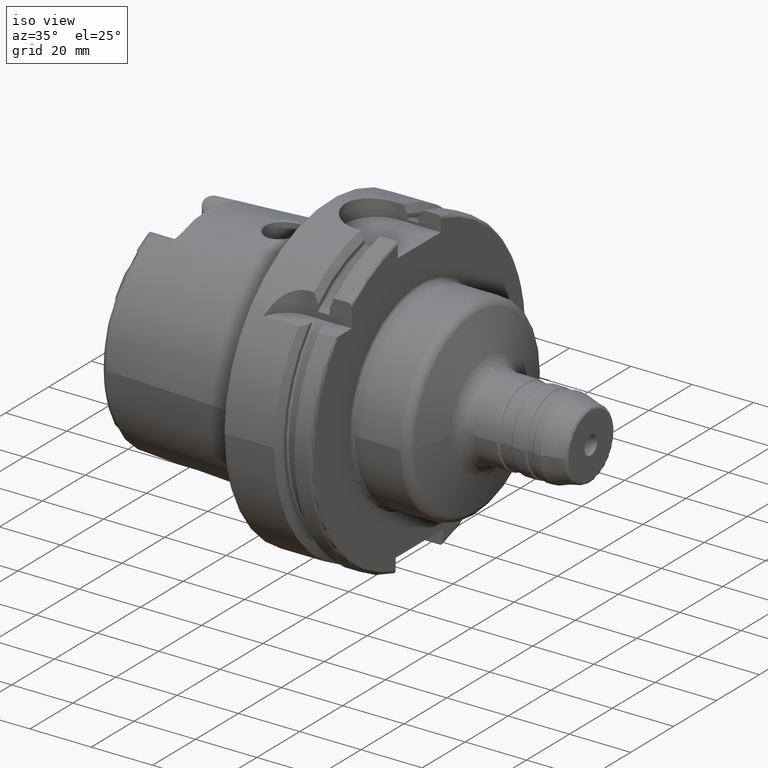
[diagram: clean part render]
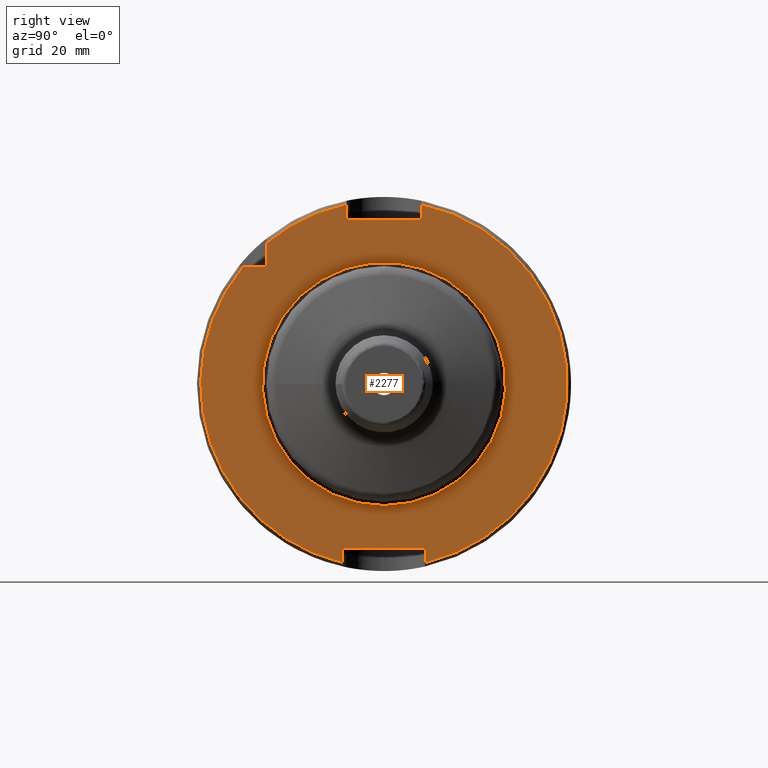
[diagram: tour spotlight — one face highlighted and labeled with its STEP entity id]
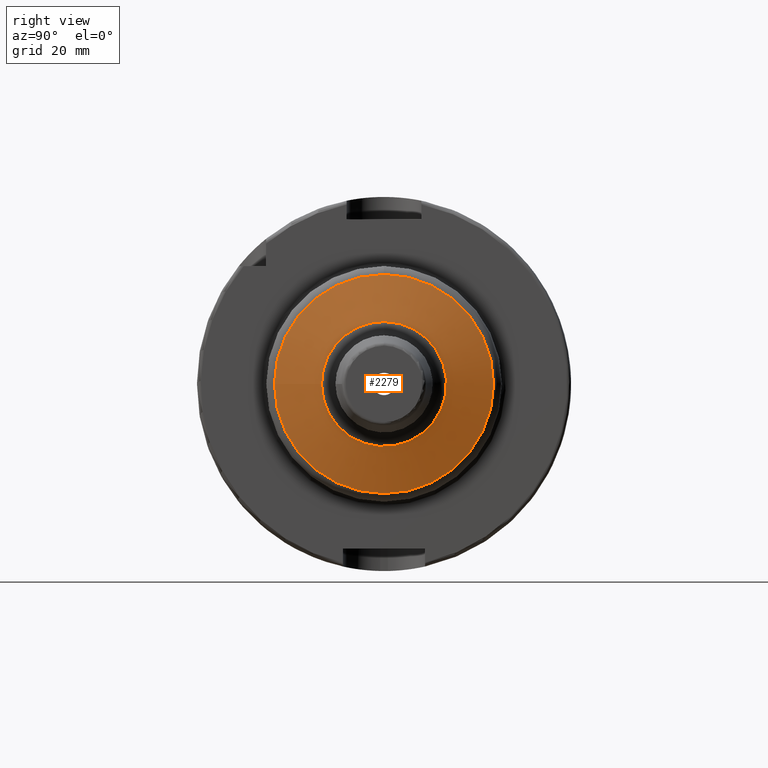
[diagram: tour spotlight — one face highlighted and labeled with its STEP entity id]
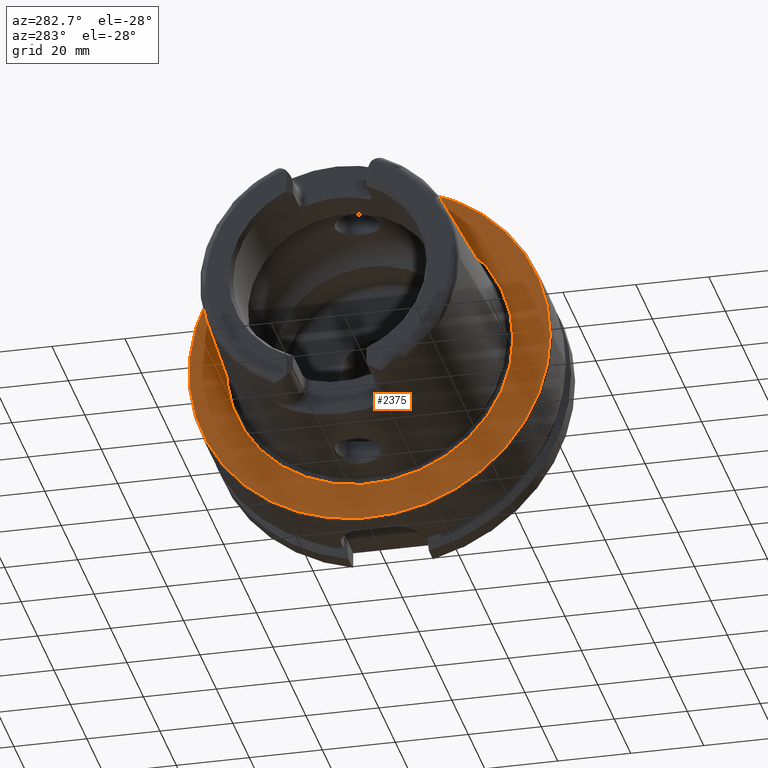
[diagram: tour spotlight — one face highlighted and labeled with its STEP entity id]
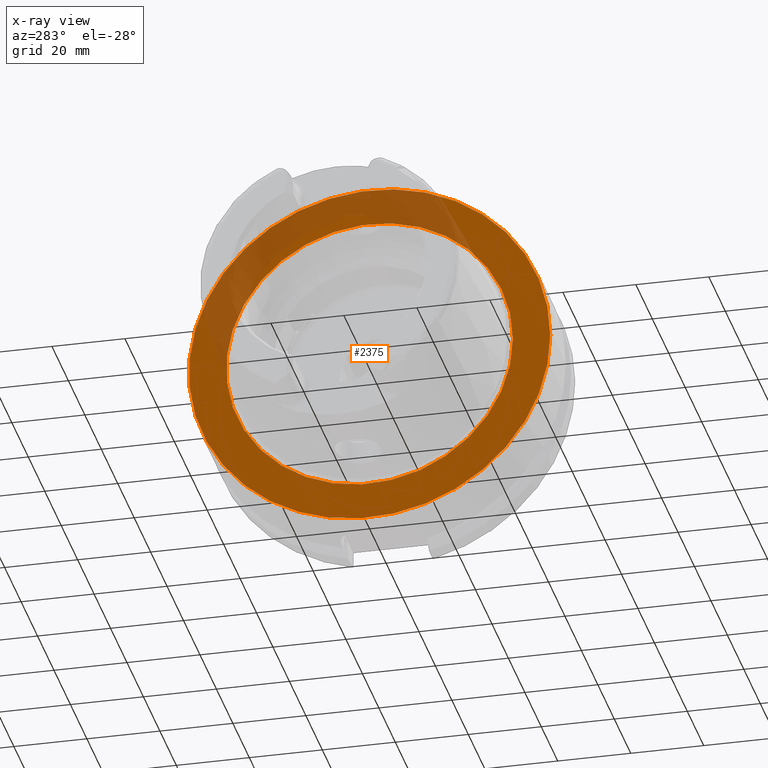
[diagram: x-ray of the same camera — body ghosted, this tour face saturated]
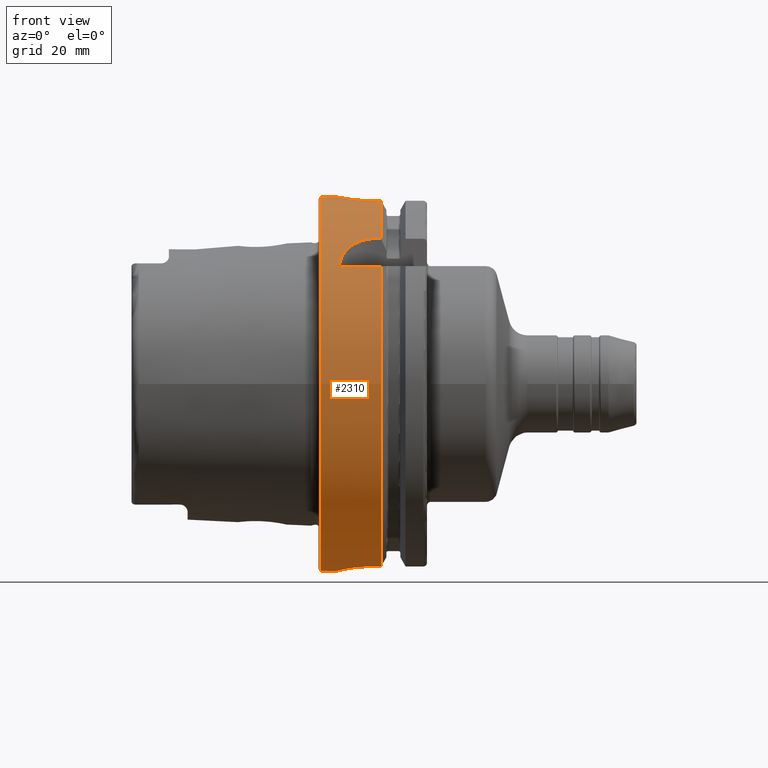
[diagram: tour spotlight — one face highlighted and labeled with its STEP entity id]
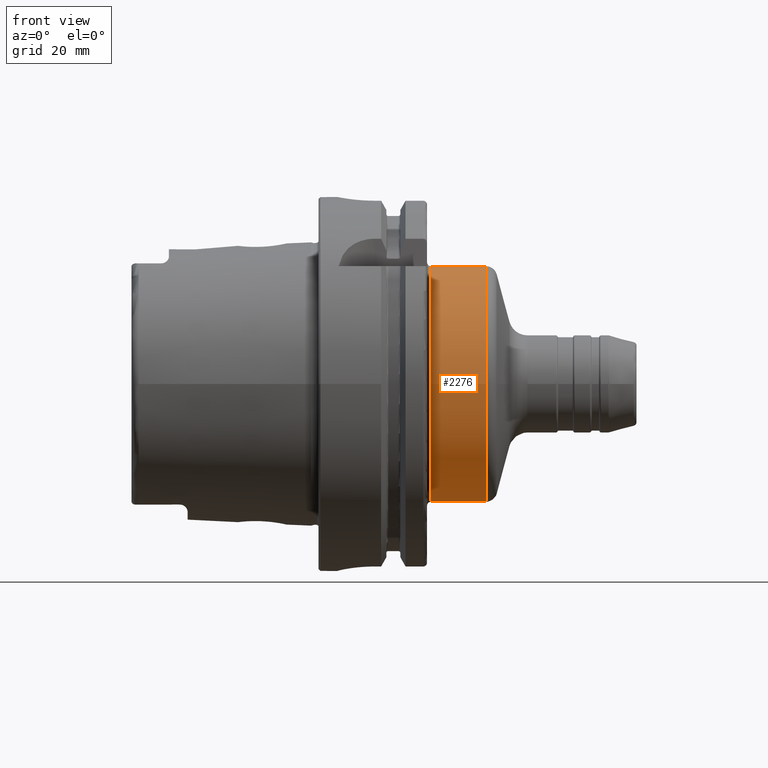
[diagram: tour spotlight — one face highlighted and labeled with its STEP entity id]
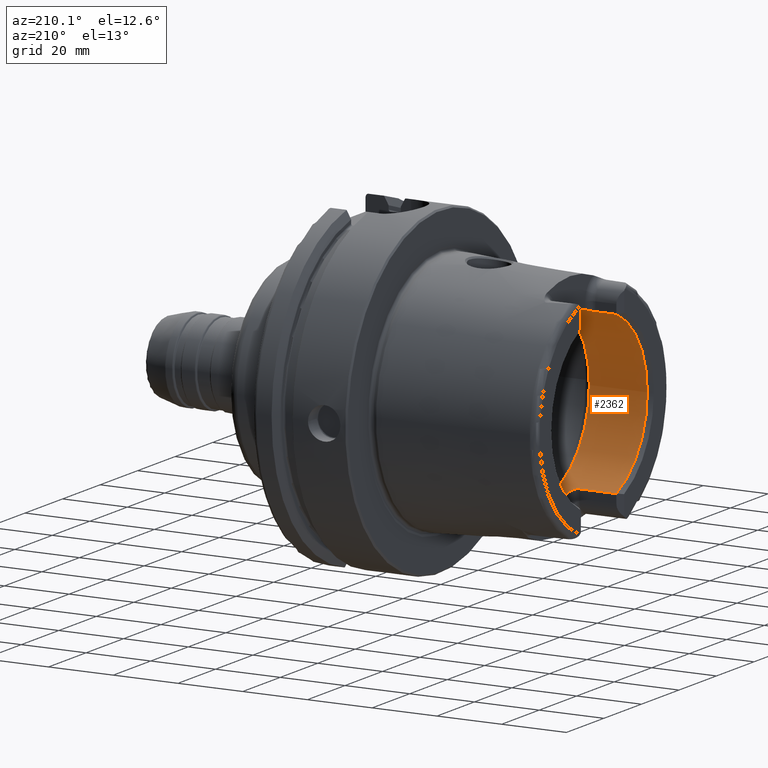
[diagram: tour spotlight — one face highlighted and labeled with its STEP entity id]
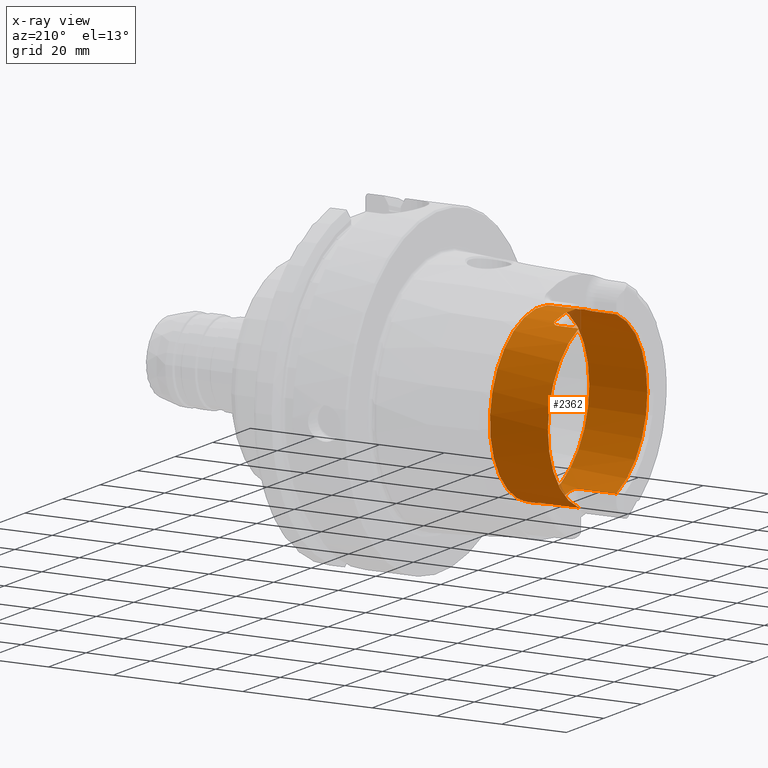
[diagram: x-ray of the same camera — body ghosted, this tour face saturated]
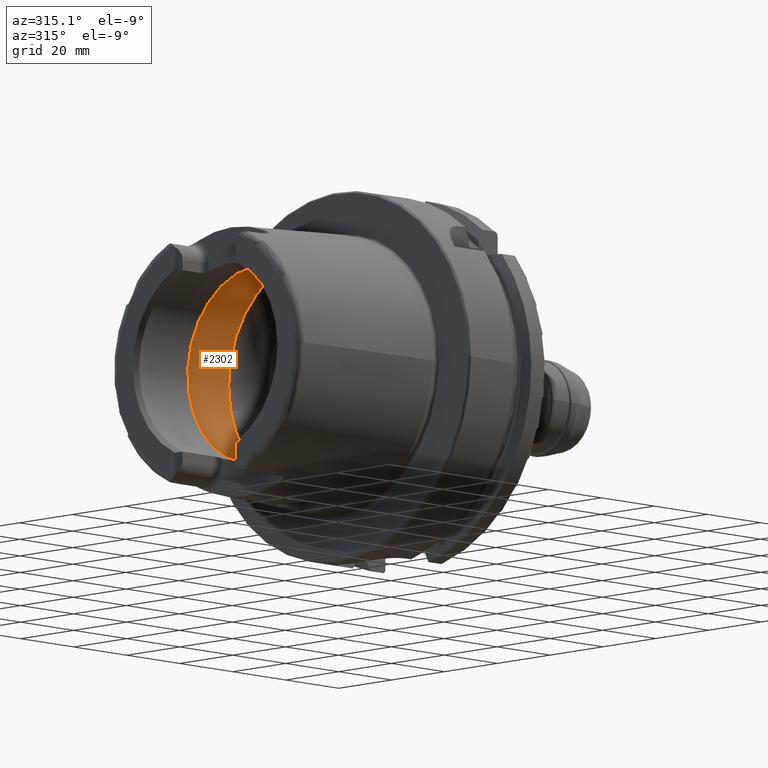
[diagram: tour spotlight — one face highlighted and labeled with its STEP entity id]
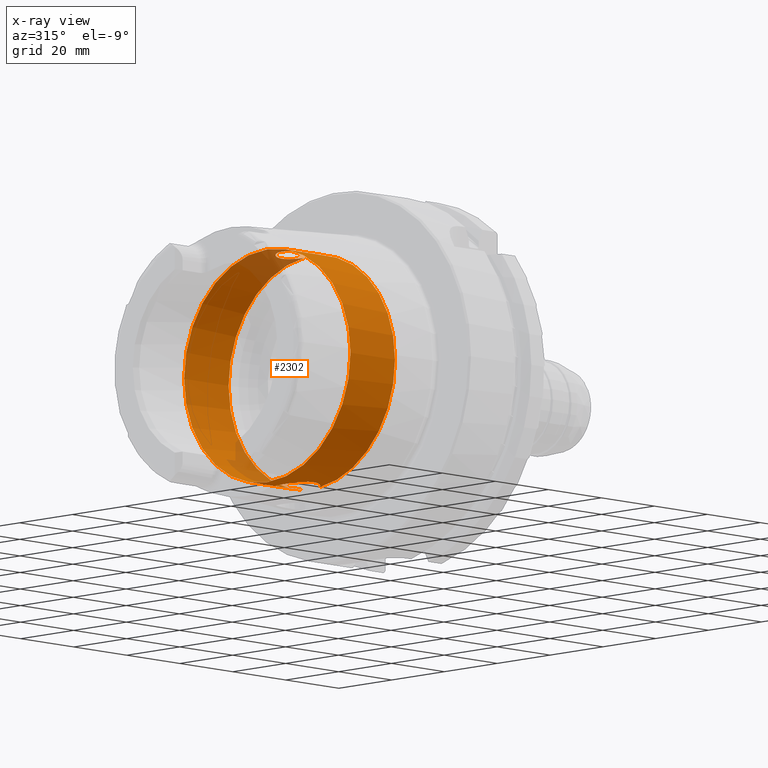
[diagram: x-ray of the same camera — body ghosted, this tour face saturated]
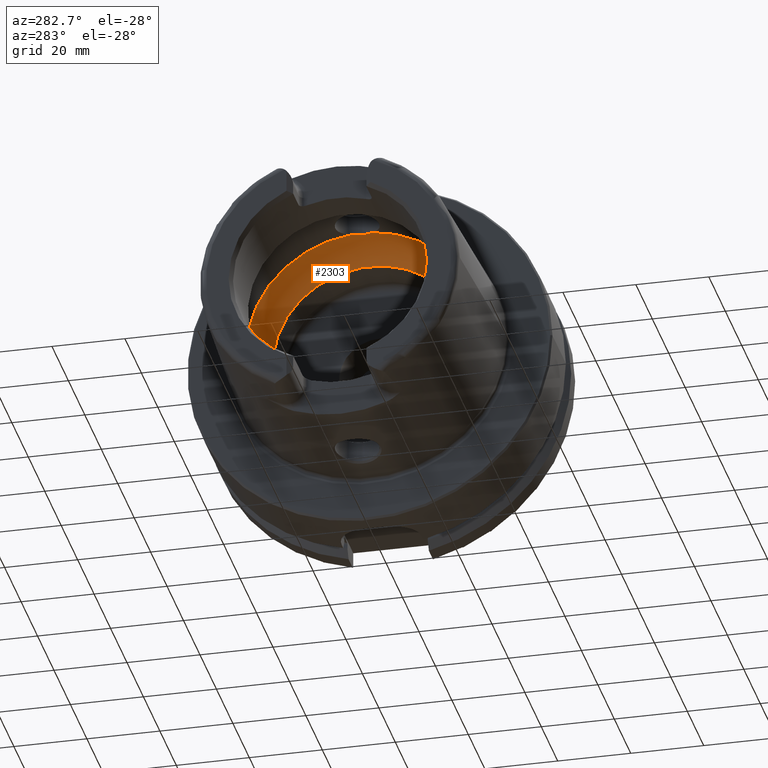
[diagram: tour spotlight — one face highlighted and labeled with its STEP entity id]
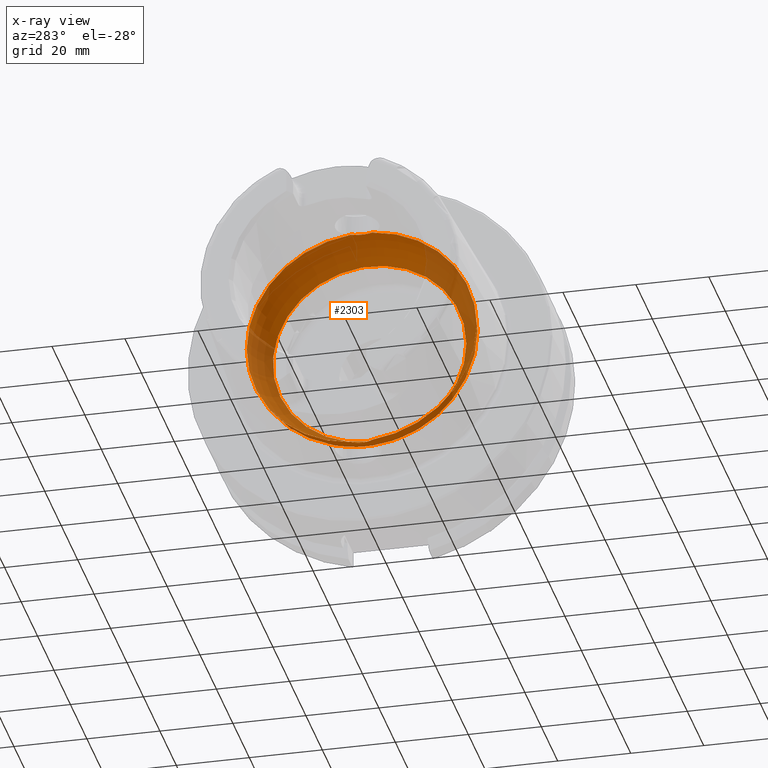
[diagram: x-ray of the same camera — body ghosted, this tour face saturated]
A machine part: a face-by-face anatomy tour. The part has 134 B-rep faces; the first image is the clean iso view, then the 8 largest visible faces are spotlighted one at a time (largest first), each with its STEP entity span.

Face 1 — right view, entity #2277. In plain terms, the highlighted planar face has unit normal (1, 0, 0).
Definition (entity closure, byte-faithful):
#94=FACE_BOUND('',#357,.T.);
#105=PLANE('',#2494);
#221=FACE_OUTER_BOUND('',#356,.T.);
#356=EDGE_LOOP('',(#1618,#1619,#1620,#1621,#1622,#1623,#1624,#1625,#1626,
#1627,#1628));
#357=EDGE_LOOP('',(#1629));
#488=LINE('',#3629,#599);
#489=LINE('',#3633,#600);
#490=LINE('',#3635,#601);
#491=LINE('',#3637,#602);
#492=LINE('',#3641,#603);
#493=LINE('',#3643,#604);
#494=LINE('',#3645,#605);
#495=LINE('',#3648,#606);
#599=VECTOR('',#2913,10.);
#600=VECTOR('',#2916,10.);
#601=VECTOR('',#2917,10.);
#602=VECTOR('',#2918,10.);
#603=VECTOR('',#2921,10.);
#604=VECTOR('',#2922,10.);
#605=VECTOR('',#2923,10.);
#606=VECTOR('',#2926,10.);
#754=CIRCLE('',#2489,32.5);
#758=CIRCLE('',#2495,49.);
#759=CIRCLE('',#2496,49.);
#760=CIRCLE('',#2497,49.);
#923=VERTEX_POINT('',#3616);
#926=VERTEX_POINT('',#3627);
#927=VERTEX_POINT('',#3628);
#928=VERTEX_POINT('',#3630);
#929=VERTEX_POINT('',#3632);
#930=VERTEX_POINT('',#3634);
#931=VERTEX_POINT('',#3636);
#932=VERTEX_POINT('',#3638);
#933=VERTEX_POINT('',#3640);
#934=VERTEX_POINT('',#3642);
#935=VERTEX_POINT('',#3644);
#936=VERTEX_POINT('',#3646);
#1183=EDGE_CURVE('',#923,#923,#754,.T.);
#1188=EDGE_CURVE('',#926,#927,#488,.T.);
#1189=EDGE_CURVE('',#927,#928,#758,.T.);
#1190=EDGE_CURVE('',#928,#929,#489,.T.);
#1191=EDGE_CURVE('',#929,#930,#490,.T.);
#1192=EDGE_CURVE('',#930,#931,#491,.T.);
#1193=EDGE_CURVE('',#931,#932,#759,.T.);
#1194=EDGE_CURVE('',#932,#933,#492,.T.);
#1195=EDGE_CURVE('',#933,#934,#493,.T.);
#1196=EDGE_CURVE('',#934,#935,#494,.T.);
#1197=EDGE_CURVE('',#935,#936,#760,.T.);
#1198=EDGE_CURVE('',#936,#926,#495,.T.);
#1618=ORIENTED_EDGE('',*,*,#1188,.T.);
#1619=ORIENTED_EDGE('',*,*,#1189,.T.);
#1620=ORIENTED_EDGE('',*,*,#1190,.T.);
#1621=ORIENTED_EDGE('',*,*,#1191,.T.);
#1622=ORIENTED_EDGE('',*,*,#1192,.T.);
#1623=ORIENTED_EDGE('',*,*,#1193,.T.);
#1624=ORIENTED_EDGE('',*,*,#1194,.T.);
#1625=ORIENTED_EDGE('',*,*,#1195,.T.);
#1626=ORIENTED_EDGE('',*,*,#1196,.T.);
#1627=ORIENTED_EDGE('',*,*,#1197,.T.);
#1628=ORIENTED_EDGE('',*,*,#1198,.T.);
#1629=ORIENTED_EDGE('',*,*,#1183,.F.);
#2277=ADVANCED_FACE('',(#221,#94),#105,.T.);
#2489=AXIS2_PLACEMENT_3D('',#3618,#2900,#2901);
#2494=AXIS2_PLACEMENT_3D('',#3626,#2911,#2912);
#2495=AXIS2_PLACEMENT_3D('',#3631,#2914,#2915);
#2496=AXIS2_PLACEMENT_3D('',#3639,#2919,#2920);
#2497=AXIS2_PLACEMENT_3D('',#3647,#2924,#2925);
#2900=DIRECTION('center_axis',(1.,0.,0.));
#2901=DIRECTION('ref_axis',(0.,-1.,-1.22464679914735E-16));
#2911=DIRECTION('center_axis',(1.,0.,0.));
#2912=DIRECTION('ref_axis',(0.,0.,-1.));
#2913=DIRECTION('',(0.,-1.,0.));
#2914=DIRECTION('center_axis',(1.,0.,0.));
#2915=DIRECTION('ref_axis',(0.,0.,-1.));
#2916=DIRECTION('',(0.,0.,1.));
#2917=DIRECTION('',(0.,1.,0.));
#2918=DIRECTION('',(0.,0.,-1.));
#2919=DIRECTION('center_axis',(1.,0.,0.));
#2920=DIRECTION('ref_axis',(0.,0.,-1.));
#2921=DIRECTION('',(0.,0.,-1.));
#2922=DIRECTION('',(0.,-1.,0.));
#2923=DIRECTION('',(0.,0.,1.));
#2924=DIRECTION('center_axis',(1.,0.,0.));
#2925=DIRECTION('ref_axis',(0.,0.,-1.));
#2926=DIRECTION('',(0.,0.,-1.));
#3616=CARTESIAN_POINT('',(29.,-3.9801020972289E-15,-32.5));
#3618=CARTESIAN_POINT('Origin',(29.,0.,0.));
#3626=CARTESIAN_POINT('Origin',(29.,0.,0.));
#3627=CARTESIAN_POINT('',(29.,-31.5,31.5));
#3628=CARTESIAN_POINT('',(29.,-37.5333185316726,31.5));
#3629=CARTESIAN_POINT('',(29.,-18.25,31.5));
#3630=CARTESIAN_POINT('',(29.,-11.,-47.7493455452533));
#3631=CARTESIAN_POINT('Origin',(29.,0.,0.));
#3632=CARTESIAN_POINT('',(29.,-11.,-44.));
#3633=CARTESIAN_POINT('',(29.,-11.,-22.));
#3634=CARTESIAN_POINT('',(29.,11.,-44.));
#3635=CARTESIAN_POINT('',(29.,-5.55111512312578E-16,-44.));
#3636=CARTESIAN_POINT('',(29.,11.,-47.7493455452533));
#3637=CARTESIAN_POINT('',(29.,11.,-22.));
#3638=CARTESIAN_POINT('',(29.,10.,47.9687398208458));
#3639=CARTESIAN_POINT('Origin',(29.,0.,0.));
#3640=CARTESIAN_POINT('',(29.,10.,44.));
#3641=CARTESIAN_POINT('',(29.,10.,22.));
#3642=CARTESIAN_POINT('',(29.,-10.,44.));
#3643=CARTESIAN_POINT('',(29.,0.,44.));
#3644=CARTESIAN_POINT('',(29.,-10.,47.9687398208458));
#3645=CARTESIAN_POINT('',(29.,-10.,22.));
#3646=CARTESIAN_POINT('',(29.,-31.5,37.5333185316726));
#3647=CARTESIAN_POINT('Origin',(29.,0.,0.));
#3648=CARTESIAN_POINT('',(29.,-31.5,15.75));

Face 2 — right view, entity #2279. In plain terms, the highlighted conical surface has half-angle 75 deg.
Definition (entity closure, byte-faithful):
#147=CONICAL_SURFACE('',#2502,22.25,1.30899693899575);
#223=FACE_OUTER_BOUND('',#359,.T.);
#359=EDGE_LOOP('',(#1636,#1637,#1638,#1639,#1640,#1641));
#496=LINE('',#3659,#607);
#607=VECTOR('',#2939,22.25);
#761=CIRCLE('',#2499,29.2764571353076);
#762=CIRCLE('',#2500,29.2764571353076);
#764=CIRCLE('',#2503,16.7059047744874);
#765=CIRCLE('',#2504,16.7059047744874);
#937=VERTEX_POINT('',#3650);
#938=VERTEX_POINT('',#3651);
#939=VERTEX_POINT('',#3656);
#940=VERTEX_POINT('',#3657);
#1199=EDGE_CURVE('',#937,#938,#761,.T.);
#1200=EDGE_CURVE('',#938,#937,#762,.T.);
#1202=EDGE_CURVE('',#939,#940,#764,.T.);
#1203=EDGE_CURVE('',#939,#938,#496,.T.);
#1204=EDGE_CURVE('',#940,#939,#765,.T.);
#1636=ORIENTED_EDGE('',*,*,#1202,.F.);
#1637=ORIENTED_EDGE('',*,*,#1203,.T.);
#1638=ORIENTED_EDGE('',*,*,#1199,.F.);
#1639=ORIENTED_EDGE('',*,*,#1200,.F.);
#1640=ORIENTED_EDGE('',*,*,#1203,.F.);
#1641=ORIENTED_EDGE('',*,*,#1204,.F.);
#2279=ADVANCED_FACE('',(#223),#147,.T.);
#2499=AXIS2_PLACEMENT_3D('',#3652,#2929,#2930);
#2500=AXIS2_PLACEMENT_3D('',#3653,#2931,#2932);
#2502=AXIS2_PLACEMENT_3D('',#3655,#2935,#2936);
#2503=AXIS2_PLACEMENT_3D('',#3658,#2937,#2938);
#2504=AXIS2_PLACEMENT_3D('',#3660,#2940,#2941);
#2929=DIRECTION('center_axis',(-1.,0.,0.));
#2930=DIRECTION('ref_axis',(0.,-1.,3.06161699786838E-17));
#2931=DIRECTION('center_axis',(-1.,0.,0.));
#2932=DIRECTION('ref_axis',(0.,-1.,3.06161699786838E-17));
#2935=DIRECTION('center_axis',(-1.,0.,0.));
#2936=DIRECTION('ref_axis',(0.,1.,0.));
#2937=DIRECTION('center_axis',(1.,0.,0.));
#2938=DIRECTION('ref_axis',(0.,-1.,3.06161699786838E-17));
#2939=DIRECTION('',(-0.258819045102521,-0.965925826289068,-1.18291797137867E-16));
#2940=DIRECTION('center_axis',(1.,0.,0.));
#2941=DIRECTION('ref_axis',(0.,-1.,3.06161699786838E-17));
#3650=CARTESIAN_POINT('',(47.6387364549545,-3.58533195211291E-15,29.2764571353076));
#3651=CARTESIAN_POINT('',(47.6387364549545,-29.2764571353076,-3.58533195211291E-15));
#3652=CARTESIAN_POINT('Origin',(47.6387364549545,0.,-4.48166494014114E-15));
#3653=CARTESIAN_POINT('Origin',(47.6387364549545,0.,-4.48166494014114E-15));
#3655=CARTESIAN_POINT('Origin',(49.5214699700121,0.,0.));
#3656=CARTESIAN_POINT('',(51.0070058084494,-16.7059047744874,-2.04588328089365E-15));
#3657=CARTESIAN_POINT('',(51.0070058084494,-2.04588328089365E-15,16.7059047744874));
#3658=CARTESIAN_POINT('Origin',(51.0070058084494,0.,-2.55735410111706E-15));
#3659=CARTESIAN_POINT('',(49.5214699700121,-22.25,-2.72483912810286E-15));
#3660=CARTESIAN_POINT('Origin',(51.0070058084494,0.,-2.55735410111706E-15));

Face 3 — auxiliary view, entity #2375. An x-ray twin of the same camera follows (body ghosted, this face saturated) — the face is partly hidden behind the body. In plain terms, the highlighted planar face has unit normal (-1, 0, 0).
Definition (entity closure, byte-faithful):
#103=FACE_BOUND('',#464,.T.);
#139=PLANE('',#2706);
#319=FACE_OUTER_BOUND('',#463,.T.);
#463=EDGE_LOOP('',(#2164));
#464=EDGE_LOOP('',(#2165));
#865=CIRCLE('',#2705,39.2747800249997);
#866=CIRCLE('',#2707,49.5);
#1111=VERTEX_POINT('',#5065);
#1112=VERTEX_POINT('',#5069);
#1467=EDGE_CURVE('',#1111,#1111,#865,.T.);
#1468=EDGE_CURVE('',#1112,#1112,#866,.T.);
#2164=ORIENTED_EDGE('',*,*,#1468,.F.);
#2165=ORIENTED_EDGE('',*,*,#1467,.T.);
#2375=ADVANCED_FACE('',(#319,#103),#139,.T.);
#2705=AXIS2_PLACEMENT_3D('',#5067,#3429,#3430);
#2706=AXIS2_PLACEMENT_3D('',#5068,#3431,#3432);
#2707=AXIS2_PLACEMENT_3D('',#5070,#3433,#3434);
#3429=DIRECTION('center_axis',(1.,0.,0.));
#3430=DIRECTION('ref_axis',(0.,0.,-1.));
#3431=DIRECTION('center_axis',(-1.,0.,0.));
#3432=DIRECTION('ref_axis',(0.,0.,1.));
#3433=DIRECTION('center_axis',(1.,0.,0.));
#3434=DIRECTION('ref_axis',(0.,0.,-1.));
#5065=CARTESIAN_POINT('',(-1.04950770296597E-15,-39.2747800249997,-4.80977336448322E-15));
#5067=CARTESIAN_POINT('Origin',(0.,0.,0.));
#5068=CARTESIAN_POINT('Origin',(0.,49.5,0.));
#5069=CARTESIAN_POINT('',(1.28369537222284E-15,-49.5,-6.0620016557794E-15));
#5070=CARTESIAN_POINT('Origin',(0.,0.,0.));

Face 4 — front view, entity #2310. In plain terms, the highlighted cylindrical surface (bore or boss wall) has radius 50 mm, axis along (1, 0, 0).
Definition (entity closure, byte-faithful):
#56=B_SPLINE_CURVE_WITH_KNOTS('',3,(#4421,#4422,#4423,#4424,#4425,#4426,
#4427,#4428,#4429,#4430,#4431,#4432,#4433,#4434,#4435,#4436,#4437,#4438,
#4439,#4440,#4441,#4442,#4443,#4444,#4445,#4446),.UNSPECIFIED.,.F.,.F.,
(4,2,2,2,2,2,2,2,2,2,2,2,4),(0.,0.188478911015149,0.376957822030298,0.565436091508923,
0.753914360987547,0.942392630466172,1.1308708999448,1.31934981095995,1.50782872197509,
1.69630763299024,1.88478654400539,2.07326481348402,2.26174308296264),
 .UNSPECIFIED.);
#57=B_SPLINE_CURVE_WITH_KNOTS('',3,(#4447,#4448,#4449,#4450,#4451,#4452,
#4453,#4454,#4455,#4456),.UNSPECIFIED.,.F.,.F.,(4,2,2,2,4),(2.26174308296264,
2.45022135244127,2.63869962191989,2.82717853293504,3.01565744395019),
 .UNSPECIFIED.);
#58=B_SPLINE_CURVE_WITH_KNOTS('',3,(#4460,#4461,#4462,#4463,#4464,#4465,
#4466,#4467,#4468,#4469,#4470,#4471),.UNSPECIFIED.,.F.,.F.,(4,2,2,2,2,4),
(1.13213255574021,1.59216410027009,1.87572541272146,2.15928672517283,2.38471683342296,
2.61014694167308),.UNSPECIFIED.);
#65=B_SPLINE_CURVE_WITH_KNOTS('',3,(#4584,#4585,#4586,#4587,#4588,#4589,
#4590,#4591,#4592,#4593,#4594,#4595,#4596,#4597,#4598,#4599,#4600,#4601),
 .UNSPECIFIED.,.F.,.F.,(4,2,2,2,2,2,2,2,4),(0.,0.377795255890194,0.755590511780389,
1.13336459804459,1.51113868430879,1.88891277057299,2.26668685683718,2.64448211272738,
3.02227736861757),.UNSPECIFIED.);
#66=B_SPLINE_CURVE_WITH_KNOTS('',3,(#4609,#4610,#4611,#4612,#4613,#4614,
#4615,#4616,#4617,#4618),.UNSPECIFIED.,.F.,.F.,(4,2,2,2,4),(0.,0.377863193874929,
0.755726387749858,1.13417752669663,1.51262866564341),.UNSPECIFIED.);
#67=B_SPLINE_CURVE_WITH_KNOTS('',3,(#4622,#4623,#4624,#4625,#4626,#4627,
#4628,#4629,#4630,#4631),.UNSPECIFIED.,.F.,.F.,(4,2,2,2,4),(1.50996806152532,
1.8884192004721,2.26687033941887,2.6447335332938,3.02259672716873),
 .UNSPECIFIED.);
#99=FACE_BOUND('',#395,.T.);
#254=FACE_OUTER_BOUND('',#394,.T.);
#394=EDGE_LOOP('',(#1826,#1827,#1828,#1829,#1830,#1831,#1832,#1833,#1834,
#1835,#1836,#1837,#1838,#1839,#1840,#1841,#1842,#1843));
#395=EDGE_LOOP('',(#1844,#1845));
#525=LINE('',#4477,#636);
#531=LINE('',#4529,#642);
#536=LINE('',#4582,#647);
#537=LINE('',#4603,#648);
#538=LINE('',#4607,#649);
#539=LINE('',#4633,#650);
#540=LINE('',#4637,#651);
#636=VECTOR('',#3110,10.);
#642=VECTOR('',#3118,10.);
#647=VECTOR('',#3127,10.);
#648=VECTOR('',#3128,10.);
#649=VECTOR('',#3131,10.);
#650=VECTOR('',#3134,10.);
#651=VECTOR('',#3137,50.);
#801=CIRCLE('',#2577,50.);
#802=CIRCLE('',#2578,50.);
#803=CIRCLE('',#2579,50.);
#804=CIRCLE('',#2580,50.);
#805=CIRCLE('',#2581,50.);
#806=CIRCLE('',#2582,50.);
#1011=VERTEX_POINT('',#4418);
#1012=VERTEX_POINT('',#4420);
#1013=VERTEX_POINT('',#4458);
#1014=VERTEX_POINT('',#4459);
#1016=VERTEX_POINT('',#4476);
#1025=VERTEX_POINT('',#4528);
#1034=VERTEX_POINT('',#4579);
#1035=VERTEX_POINT('',#4581);
#1036=VERTEX_POINT('',#4583);
#1037=VERTEX_POINT('',#4602);
#1038=VERTEX_POINT('',#4604);
#1039=VERTEX_POINT('',#4606);
#1040=VERTEX_POINT('',#4608);
#1041=VERTEX_POINT('',#4619);
#1042=VERTEX_POINT('',#4621);
#1043=VERTEX_POINT('',#4632);
#1044=VERTEX_POINT('',#4634);
#1045=VERTEX_POINT('',#4636);
#1301=EDGE_CURVE('',#1012,#1011,#56,.T.);
#1302=EDGE_CURVE('',#1011,#1012,#57,.T.);
#1303=EDGE_CURVE('',#1013,#1014,#58,.T.);
#1306=EDGE_CURVE('',#1014,#1016,#525,.T.);
#1317=EDGE_CURVE('',#1025,#1013,#531,.T.);
#1327=EDGE_CURVE('',#1034,#1016,#801,.T.);
#1328=EDGE_CURVE('',#1034,#1035,#536,.T.);
#1329=EDGE_CURVE('',#1035,#1036,#65,.T.);
#1330=EDGE_CURVE('',#1036,#1037,#537,.T.);
#1331=EDGE_CURVE('',#1038,#1037,#802,.T.);
#1332=EDGE_CURVE('',#1038,#1039,#538,.T.);
#1333=EDGE_CURVE('',#1039,#1040,#66,.T.);
#1334=EDGE_CURVE('',#1040,#1041,#803,.T.);
#1335=EDGE_CURVE('',#1041,#1042,#67,.T.);
#1336=EDGE_CURVE('',#1042,#1043,#539,.T.);
#1337=EDGE_CURVE('',#1044,#1043,#804,.T.);
#1338=EDGE_CURVE('',#1044,#1045,#540,.T.);
#1339=EDGE_CURVE('',#1045,#1045,#805,.T.);
#1340=EDGE_CURVE('',#1025,#1044,#806,.T.);
#1826=ORIENTED_EDGE('',*,*,#1317,.T.);
#1827=ORIENTED_EDGE('',*,*,#1303,.T.);
#1828=ORIENTED_EDGE('',*,*,#1306,.T.);
#1829=ORIENTED_EDGE('',*,*,#1327,.F.);
#1830=ORIENTED_EDGE('',*,*,#1328,.T.);
#1831=ORIENTED_EDGE('',*,*,#1329,.T.);
#1832=ORIENTED_EDGE('',*,*,#1330,.T.);
#1833=ORIENTED_EDGE('',*,*,#1331,.F.);
#1834=ORIENTED_EDGE('',*,*,#1332,.T.);
#1835=ORIENTED_EDGE('',*,*,#1333,.T.);
#1836=ORIENTED_EDGE('',*,*,#1334,.T.);
#1837=ORIENTED_EDGE('',*,*,#1335,.T.);
#1838=ORIENTED_EDGE('',*,*,#1336,.T.);
#1839=ORIENTED_EDGE('',*,*,#1337,.F.);
#1840=ORIENTED_EDGE('',*,*,#1338,.T.);
#1841=ORIENTED_EDGE('',*,*,#1339,.T.);
#1842=ORIENTED_EDGE('',*,*,#1338,.F.);
#1843=ORIENTED_EDGE('',*,*,#1340,.F.);
#1844=ORIENTED_EDGE('',*,*,#1301,.T.);
#1845=ORIENTED_EDGE('',*,*,#1302,.T.);
#2231=CYLINDRICAL_SURFACE('',#2576,50.);
#2310=ADVANCED_FACE('',(#254,#99),#2231,.T.);
#2576=AXIS2_PLACEMENT_3D('',#4578,#3123,#3124);
#2577=AXIS2_PLACEMENT_3D('',#4580,#3125,#3126);
#2578=AXIS2_PLACEMENT_3D('',#4605,#3129,#3130);
#2579=AXIS2_PLACEMENT_3D('',#4620,#3132,#3133);
#2580=AXIS2_PLACEMENT_3D('',#4635,#3135,#3136);
#2581=AXIS2_PLACEMENT_3D('',#4638,#3138,#3139);
#2582=AXIS2_PLACEMENT_3D('',#4639,#3140,#3141);
#3110=DIRECTION('',(1.,0.,0.));
#3118=DIRECTION('',(-1.,0.,0.));
#3123=DIRECTION('center_axis',(1.,0.,0.));
#3124=DIRECTION('ref_axis',(0.,1.,0.));
#3125=DIRECTION('center_axis',(1.,0.,0.));
#3126=DIRECTION('ref_axis',(0.,0.,-1.));
#3127=DIRECTION('',(-1.,0.,0.));
#3128=DIRECTION('',(1.,0.,0.));
#3129=DIRECTION('center_axis',(1.,0.,0.));
#3130=DIRECTION('ref_axis',(0.,0.,-1.));
#3131=DIRECTION('',(-1.,0.,0.));
#3132=DIRECTION('center_axis',(-1.,0.,0.));
#3133=DIRECTION('ref_axis',(0.,1.,0.));
#3134=DIRECTION('',(1.,0.,0.));
#3135=DIRECTION('center_axis',(1.,0.,0.));
#3136=DIRECTION('ref_axis',(0.,0.,-1.));
#3137=DIRECTION('',(-1.,0.,0.));
#3138=DIRECTION('center_axis',(1.,0.,0.));
#3139=DIRECTION('ref_axis',(0.,0.,-1.));
#3140=DIRECTION('center_axis',(1.,0.,0.));
#3141=DIRECTION('ref_axis',(0.,0.,-1.));
#4418=CARTESIAN_POINT('',(12.,50.,-6.12323399573677E-16));
#4420=CARTESIAN_POINT('',(6.99999999999999,49.749371855331,5.));
#4421=CARTESIAN_POINT('Ctrl Pts',(6.99999999999999,49.749371855331,5.));
#4422=CARTESIAN_POINT('Ctrl Pts',(6.37173696328283,49.749371855331,5.));
#4423=CARTESIAN_POINT('Ctrl Pts',(5.70188570880885,49.7624993987098,4.87435544587055));
#4424=CARTESIAN_POINT('Ctrl Pts',(4.4701142477173,49.8098541153698,4.36395693611591));
#4425=CARTESIAN_POINT('Ctrl Pts',(3.90815809537484,49.8433908660961,3.97922590724033));
#4426=CARTESIAN_POINT('Ctrl Pts',(3.02077560297968,49.9062957431473,3.09184341484517));
#4427=CARTESIAN_POINT('Ctrl Pts',(2.63604339567929,49.9397591808605,2.52988660036719));
#4428=CARTESIAN_POINT('Ctrl Pts',(2.12564400622109,49.9869460568296,1.29811292154946));
#4429=CARTESIAN_POINT('Ctrl Pts',(1.99999999999999,50.,0.628260898262081));
#4430=CARTESIAN_POINT('Ctrl Pts',(1.99999999999999,50.,-0.628260898262082));
#4431=CARTESIAN_POINT('Ctrl Pts',(2.12564400622109,49.9869460568296,-1.29811292154946));
#4432=CARTESIAN_POINT('Ctrl Pts',(2.63604339567929,49.9397591808605,-2.52988660036719));
#4433=CARTESIAN_POINT('Ctrl Pts',(3.02077560297968,49.9062957431473,-3.09184341484517));
#4434=CARTESIAN_POINT('Ctrl Pts',(3.90815809537484,49.8433908660961,-3.97922590724033));
#4435=CARTESIAN_POINT('Ctrl Pts',(4.4701142477173,49.8098541153698,-4.36395693611591));
#4436=CARTESIAN_POINT('Ctrl Pts',(5.70188570880885,49.7624993987098,-4.87435544587055));
#4437=CARTESIAN_POINT('Ctrl Pts',(6.37173696328283,49.749371855331,-5.));
#4438=CARTESIAN_POINT('Ctrl Pts',(7.62826303671716,49.749371855331,-5.));
#4439=CARTESIAN_POINT('Ctrl Pts',(8.29811429119113,49.7624993987098,-4.87435544587055));
#4440=CARTESIAN_POINT('Ctrl Pts',(9.52988575228269,49.8098541153698,-4.36395693611591));
#4441=CARTESIAN_POINT('Ctrl Pts',(10.0918419046251,49.8433908660961,-3.97922590724033));
#4442=CARTESIAN_POINT('Ctrl Pts',(10.9792243970203,49.9062957431473,-3.09184341484517));
#4443=CARTESIAN_POINT('Ctrl Pts',(11.3639566043207,49.9397591808605,-2.52988660036719));
#4444=CARTESIAN_POINT('Ctrl Pts',(11.8743559937789,49.9869460568296,-1.29811292154947));
#4445=CARTESIAN_POINT('Ctrl Pts',(12.,50.,-0.628260898262083));
#4446=CARTESIAN_POINT('Ctrl Pts',(12.,50.,-5.55111512312578E-16));
#4447=CARTESIAN_POINT('Ctrl Pts',(12.,50.,-5.55111512312578E-16));
#4448=CARTESIAN_POINT('Ctrl Pts',(12.,50.,0.628260898262082));
#4449=CARTESIAN_POINT('Ctrl Pts',(11.8743559937789,49.9869460568296,1.29811292154946));
#4450=CARTESIAN_POINT('Ctrl Pts',(11.3639566043207,49.9397591808605,2.52988660036719));
#4451=CARTESIAN_POINT('Ctrl Pts',(10.9792243970203,49.9062957431473,3.09184341484517));
#4452=CARTESIAN_POINT('Ctrl Pts',(10.0918419046251,49.8433908660961,3.97922590724033));
#4453=CARTESIAN_POINT('Ctrl Pts',(9.52988575228269,49.8098541153698,4.36395693611591));
#4454=CARTESIAN_POINT('Ctrl Pts',(8.29811429119113,49.7624993987098,4.87435544587055));
#4455=CARTESIAN_POINT('Ctrl Pts',(7.62826303671716,49.749371855331,5.));
#4456=CARTESIAN_POINT('Ctrl Pts',(6.99999999999999,49.749371855331,5.));
#4458=CARTESIAN_POINT('',(5.36310214079494,-38.8297566307078,31.5));
#4459=CARTESIAN_POINT('',(15.,-31.5,38.8297566307078));
#4460=CARTESIAN_POINT('Ctrl Pts',(5.36310214079494,-38.8297566307078,31.5));
#4461=CARTESIAN_POINT('Ctrl Pts',(5.63795050776221,-37.8378299510303,32.722738779917));
#4462=CARTESIAN_POINT('Ctrl Pts',(6.08245260240086,-36.8264130955983,33.8486741193789));
#4463=CARTESIAN_POINT('Ctrl Pts',(7.14730321206235,-35.2667182945212,35.4540138707062));
#4464=CARTESIAN_POINT('Ctrl Pts',(7.68113760815893,-34.6306580359392,36.0741351437033));
#4465=CARTESIAN_POINT('Ctrl Pts',(8.97436758466638,-33.4722127660808,37.1515365058173));
#4466=CARTESIAN_POINT('Ctrl Pts',(9.73574998094174,-32.9521170857844,37.6088911783762));
#4467=CARTESIAN_POINT('Ctrl Pts',(11.1521999725134,-32.2432973482077,38.2170233500259));
#4468=CARTESIAN_POINT('Ctrl Pts',(11.8888981504148,-31.9629772872452,38.4503075998006));
#4469=CARTESIAN_POINT('Ctrl Pts',(13.4369856471743,-31.5908755949743,38.7566077888176));
#4470=CARTESIAN_POINT('Ctrl Pts',(14.2485663058329,-31.5,38.8297566307078));
#4471=CARTESIAN_POINT('Ctrl Pts',(15.,-31.5,38.8297566307078));
#4476=CARTESIAN_POINT('',(16.7379709790786,-31.5,38.8297566307078));
#4477=CARTESIAN_POINT('',(8.61898548953931,-31.5,38.8297566307078));
#4528=CARTESIAN_POINT('',(16.7379709790786,-38.8297566307078,31.5));
#4529=CARTESIAN_POINT('',(8.61898548953931,-38.8297566307078,31.5));
#4578=CARTESIAN_POINT('Origin',(8.61898548953931,0.,0.));
#4579=CARTESIAN_POINT('',(16.7379709790786,-10.,48.9897948556636));
#4580=CARTESIAN_POINT('Origin',(16.7379709790786,0.,0.));
#4581=CARTESIAN_POINT('',(15.,-10.,48.9897948556636));
#4582=CARTESIAN_POINT('',(8.61898548953931,-10.,48.9897948556636));
#4583=CARTESIAN_POINT('',(15.,10.,48.9897948556636));
#4584=CARTESIAN_POINT('Ctrl Pts',(15.,-10.,48.9897948556636));
#4585=CARTESIAN_POINT('Ctrl Pts',(13.740682480366,-10.,48.9897948556636));
#4586=CARTESIAN_POINT('Ctrl Pts',(12.3998222283811,-9.74762796248614,49.0433876618447));
#4587=CARTESIAN_POINT('Ctrl Pts',(9.93707994969945,-8.72605417648382,49.2354150792771));
#4588=CARTESIAN_POINT('Ctrl Pts',(8.81489539818993,-7.95703102192089,49.3709085101933));
#4589=CARTESIAN_POINT('Ctrl Pts',(7.04301862271998,-6.18515424645094,49.6240337638318));
#4590=CARTESIAN_POINT('Ctrl Pts',(6.27395658455242,-5.06294861197626,49.7583347151863));
#4591=CARTESIAN_POINT('Ctrl Pts',(5.25235457764165,-2.60013306081865,49.9476188647081));
#4592=CARTESIAN_POINT('Ctrl Pts',(4.99999999999999,-1.259246954214,50.));
#4593=CARTESIAN_POINT('Ctrl Pts',(4.99999999999999,1.259246954214,50.));
#4594=CARTESIAN_POINT('Ctrl Pts',(5.25235457764165,2.60013306081865,49.9476188647081));
#4595=CARTESIAN_POINT('Ctrl Pts',(6.27395658455242,5.06294861197626,49.7583347151863));
#4596=CARTESIAN_POINT('Ctrl Pts',(7.04301862271998,6.18515424645094,49.6240337638318));
#4597=CARTESIAN_POINT('Ctrl Pts',(8.81489539818993,7.95703102192089,49.3709085101933));
#4598=CARTESIAN_POINT('Ctrl Pts',(9.93707994969945,8.72605417648382,49.2354150792771));
#4599=CARTESIAN_POINT('Ctrl Pts',(12.3998222283811,9.74762796248614,49.0433876618447));
#4600=CARTESIAN_POINT('Ctrl Pts',(13.740682480366,10.,48.9897948556636));
#4601=CARTESIAN_POINT('Ctrl Pts',(15.,10.,48.9897948556636));
#4602=CARTESIAN_POINT('',(16.7379709790786,10.,48.9897948556636));
#4603=CARTESIAN_POINT('',(8.61898548953931,10.,48.9897948556636));
#4604=CARTESIAN_POINT('',(16.7379709790786,11.,-48.7749935930288));
#4605=CARTESIAN_POINT('Origin',(16.7379709790786,0.,0.));
#4606=CARTESIAN_POINT('',(15.,11.,-48.7749935930288));
#4607=CARTESIAN_POINT('',(8.61898548953931,11.,-48.7749935930288));
#4608=CARTESIAN_POINT('',(4.99999999999999,0.999999999999997,-49.9899989998));
#4609=CARTESIAN_POINT('Ctrl Pts',(15.,11.,-48.7749935930288));
#4610=CARTESIAN_POINT('Ctrl Pts',(13.7404560204169,11.,-48.7749935930288));
#4611=CARTESIAN_POINT('Ctrl Pts',(12.3998213084084,10.7475295248871,-48.8340306344483));
#4612=CARTESIAN_POINT('Ctrl Pts',(9.9383361278342,9.72667325975831,-49.0475663096823));
#4613=CARTESIAN_POINT('Ctrl Pts',(8.81713821454868,8.95850056252305,-49.1990678796225));
#4614=CARTESIAN_POINT('Ctrl Pts',(7.04551978193545,7.18842719108522,-49.4887060645896));
#4615=CARTESIAN_POINT('Ctrl Pts',(6.27594389465425,6.06650925178,-49.6460359942126));
#4616=CARTESIAN_POINT('Ctrl Pts',(5.25307325920197,3.60309260864685,-49.8853600567865));
#4617=CARTESIAN_POINT('Ctrl Pts',(4.99999999999999,2.26125147049483,-49.9647689238702));
#4618=CARTESIAN_POINT('Ctrl Pts',(4.99999999999999,1.,-49.9899989998));
#4619=CARTESIAN_POINT('',(4.99999999999999,-1.00000000000001,-49.9899989998));
#4620=CARTESIAN_POINT('Origin',(4.99999999999999,0.,0.));
#4621=CARTESIAN_POINT('',(15.,-11.,-48.7749935930288));
#4622=CARTESIAN_POINT('Ctrl Pts',(4.99999999999999,-1.,-49.9899989998));
#4623=CARTESIAN_POINT('Ctrl Pts',(4.99999999999999,-2.26125147049483,-49.9647689238702));
#4624=CARTESIAN_POINT('Ctrl Pts',(5.25307325920197,-3.60309260864686,-49.8853600567865));
#4625=CARTESIAN_POINT('Ctrl Pts',(6.27594389465425,-6.06650925178001,-49.6460359942126));
#4626=CARTESIAN_POINT('Ctrl Pts',(7.04551978193545,-7.18842719108522,-49.4887060645896));
#4627=CARTESIAN_POINT('Ctrl Pts',(8.81713821454868,-8.95850056252306,-49.1990678796225));
#4628=CARTESIAN_POINT('Ctrl Pts',(9.9383361278342,-9.72667325975831,-49.0475663096823));
#4629=CARTESIAN_POINT('Ctrl Pts',(12.3998213084084,-10.7475295248871,-48.8340306344483));
#4630=CARTESIAN_POINT('Ctrl Pts',(13.7404560204169,-11.,-48.7749935930288));
#4631=CARTESIAN_POINT('Ctrl Pts',(15.,-11.,-48.7749935930288));
#4632=CARTESIAN_POINT('',(16.7379709790786,-11.,-48.7749935930288));
#4633=CARTESIAN_POINT('',(8.61898548953931,-11.,-48.7749935930288));
#4634=CARTESIAN_POINT('',(16.7379709790786,-50.,-6.12323399573677E-15));
#4635=CARTESIAN_POINT('Origin',(16.7379709790786,0.,0.));
#4636=CARTESIAN_POINT('',(0.5,-50.,-6.12323399573677E-15));
#4637=CARTESIAN_POINT('',(8.61898548953931,-50.,-6.12323399573677E-15));
#4638=CARTESIAN_POINT('Origin',(0.5,0.,0.));
#4639=CARTESIAN_POINT('Origin',(16.7379709790786,0.,0.));

Face 5 — front view, entity #2276. In plain terms, the highlighted cylindrical surface (bore or boss wall) has radius 31.5 mm, axis along (1, 0, 0).
Definition (entity closure, byte-faithful):
#220=FACE_OUTER_BOUND('',#355,.T.);
#355=EDGE_LOOP('',(#1612,#1613,#1614,#1615,#1616,#1617));
#487=LINE('',#3624,#598);
#598=VECTOR('',#2908,31.5);
#752=CIRCLE('',#2487,31.5);
#755=CIRCLE('',#2490,31.5);
#756=CIRCLE('',#2492,31.5);
#757=CIRCLE('',#2493,31.5);
#921=VERTEX_POINT('',#3613);
#922=VERTEX_POINT('',#3614);
#924=VERTEX_POINT('',#3621);
#925=VERTEX_POINT('',#3622);
#1181=EDGE_CURVE('',#921,#922,#752,.T.);
#1184=EDGE_CURVE('',#922,#921,#755,.T.);
#1185=EDGE_CURVE('',#924,#925,#756,.T.);
#1186=EDGE_CURVE('',#924,#921,#487,.T.);
#1187=EDGE_CURVE('',#925,#924,#757,.T.);
#1612=ORIENTED_EDGE('',*,*,#1185,.F.);
#1613=ORIENTED_EDGE('',*,*,#1186,.T.);
#1614=ORIENTED_EDGE('',*,*,#1184,.F.);
#1615=ORIENTED_EDGE('',*,*,#1181,.F.);
#1616=ORIENTED_EDGE('',*,*,#1186,.F.);
#1617=ORIENTED_EDGE('',*,*,#1187,.F.);
#2220=CYLINDRICAL_SURFACE('',#2491,31.5);
#2276=ADVANCED_FACE('',(#220),#2220,.T.);
#2487=AXIS2_PLACEMENT_3D('',#3615,#2896,#2897);
#2490=AXIS2_PLACEMENT_3D('',#3619,#2902,#2903);
#2491=AXIS2_PLACEMENT_3D('',#3620,#2904,#2905);
#2492=AXIS2_PLACEMENT_3D('',#3623,#2906,#2907);
#2493=AXIS2_PLACEMENT_3D('',#3625,#2909,#2910);
#2896=DIRECTION('center_axis',(-1.,0.,0.));
#2897=DIRECTION('ref_axis',(0.,-1.,-1.22464679914735E-16));
#2902=DIRECTION('center_axis',(-1.,0.,0.));
#2903=DIRECTION('ref_axis',(0.,-1.,-1.22464679914735E-16));
#2904=DIRECTION('center_axis',(1.,0.,0.));
#2905=DIRECTION('ref_axis',(0.,1.,0.));
#2906=DIRECTION('center_axis',(1.,0.,0.));
#2907=DIRECTION('ref_axis',(0.,-1.,1.83697019872103E-16));
#2908=DIRECTION('',(-1.,0.,0.));
#2909=DIRECTION('center_axis',(1.,0.,0.));
#2910=DIRECTION('ref_axis',(0.,-1.,1.83697019872103E-16));
#3613=CARTESIAN_POINT('',(30.,-31.5,-3.85763741731416E-15));
#3614=CARTESIAN_POINT('',(30.,-3.85763741731416E-15,-31.5));
#3615=CARTESIAN_POINT('Origin',(30.,0.,0.));
#3619=CARTESIAN_POINT('Origin',(30.,0.,0.));
#3620=CARTESIAN_POINT('Origin',(38.0214699700121,0.,0.));
#3621=CARTESIAN_POINT('',(44.7409589760873,-31.5,-3.85763741731416E-15));
#3622=CARTESIAN_POINT('',(44.7409589760873,-3.85763741731416E-15,31.5));
#3623=CARTESIAN_POINT('Origin',(44.7409589760873,0.,0.));
#3624=CARTESIAN_POINT('',(38.0214699700121,-31.5,-3.85763741731416E-15));
#3625=CARTESIAN_POINT('Origin',(44.7409589760873,0.,0.));

Face 6 — auxiliary view, entity #2362. An x-ray twin of the same camera follows (body ghosted, this face saturated) — the face is partly hidden behind the body. In plain terms, the highlighted cylindrical surface (bore or boss wall) has radius 26.5 mm, axis along (-1, 0, 0).
Definition (entity closure, byte-faithful):
#80=B_SPLINE_CURVE_WITH_KNOTS('',3,(#4905,#4906,#4907,#4908,#4909,#4910,
#4911,#4912,#4913,#4914),.UNSPECIFIED.,.F.,.F.,(4,2,2,2,4),(0.307245873696209,
0.387318131676521,0.467390389656833,0.542677307505841,0.617964225354849),
 .UNSPECIFIED.);
#81=B_SPLINE_CURVE_WITH_KNOTS('',3,(#4923,#4924,#4925,#4926,#4927,#4928,
#4929,#4930,#4931,#4932),.UNSPECIFIED.,.F.,.F.,(4,2,2,2,4),(0.61796422535485,
0.694491364966707,0.771018504578565,0.849854597041439,0.928690689504313),
 .UNSPECIFIED.);
#82=B_SPLINE_CURVE_WITH_KNOTS('',3,(#4945,#4946,#4947,#4948,#4949,#4950,
#4951,#4952,#4953,#4954),.UNSPECIFIED.,.F.,.F.,(4,2,2,2,4),(0.617964225354849,
0.693251143203857,0.768538061052865,0.848610319033177,0.928682577013489),
 .UNSPECIFIED.);
#83=B_SPLINE_CURVE_WITH_KNOTS('',3,(#4974,#4975,#4976,#4977,#4978,#4979,
#4980,#4981,#4982,#4983),.UNSPECIFIED.,.F.,.F.,(4,2,2,2,4),(0.307245873696209,
0.387318131676521,0.467390389656833,0.542677307505841,0.617964225354849),
 .UNSPECIFIED.);
#306=FACE_OUTER_BOUND('',#447,.T.);
#447=EDGE_LOOP('',(#2093,#2094,#2095,#2096,#2097,#2098,#2099,#2100,#2101,
#2102,#2103,#2104,#2105,#2106,#2107,#2108,#2109));
#503=LINE('',#3689,#614);
#511=LINE('',#3764,#622);
#515=LINE('',#3828,#626);
#574=LINE('',#4970,#685);
#578=LINE('',#5018,#689);
#614=VECTOR('',#2974,10.);
#622=VECTOR('',#3020,10.);
#626=VECTOR('',#3042,10.);
#685=VECTOR('',#3321,10.);
#689=VECTOR('',#3365,26.5);
#774=CIRCLE('',#2528,26.5);
#775=CIRCLE('',#2529,26.5);
#838=CIRCLE('',#2653,26.5);
#843=CIRCLE('',#2665,26.5);
#844=CIRCLE('',#2668,26.5);
#847=CIRCLE('',#2675,26.5);
#848=CIRCLE('',#2676,26.5);
#946=VERTEX_POINT('',#3679);
#949=VERTEX_POINT('',#3687);
#958=VERTEX_POINT('',#3736);
#960=VERTEX_POINT('',#3742);
#961=VERTEX_POINT('',#3744);
#967=VERTEX_POINT('',#3762);
#973=VERTEX_POINT('',#3795);
#978=VERTEX_POINT('',#3827);
#1085=VERTEX_POINT('',#4903);
#1087=VERTEX_POINT('',#4922);
#1091=VERTEX_POINT('',#4943);
#1092=VERTEX_POINT('',#4944);
#1094=VERTEX_POINT('',#4964);
#1096=VERTEX_POINT('',#5015);
#1097=VERTEX_POINT('',#5016);
#1217=EDGE_CURVE('',#946,#949,#503,.T.);
#1230=EDGE_CURVE('',#960,#961,#774,.T.);
#1231=EDGE_CURVE('',#961,#958,#775,.T.);
#1240=EDGE_CURVE('',#960,#967,#511,.T.);
#1253=EDGE_CURVE('',#978,#973,#515,.T.);
#1411=EDGE_CURVE('',#1085,#967,#80,.T.);
#1415=EDGE_CURVE('',#978,#1087,#81,.T.);
#1421=EDGE_CURVE('',#1091,#1092,#82,.T.);
#1427=EDGE_CURVE('',#1094,#1092,#838,.T.);
#1430=EDGE_CURVE('',#1091,#958,#574,.T.);
#1433=EDGE_CURVE('',#1094,#949,#83,.T.);
#1437=EDGE_CURVE('',#1085,#1087,#843,.T.);
#1439=EDGE_CURVE('',#946,#973,#844,.T.);
#1443=EDGE_CURVE('',#1096,#1097,#847,.T.);
#1444=EDGE_CURVE('',#1096,#961,#578,.T.);
#1445=EDGE_CURVE('',#1097,#1096,#848,.T.);
#2093=ORIENTED_EDGE('',*,*,#1443,.F.);
#2094=ORIENTED_EDGE('',*,*,#1444,.T.);
#2095=ORIENTED_EDGE('',*,*,#1230,.F.);
#2096=ORIENTED_EDGE('',*,*,#1240,.T.);
#2097=ORIENTED_EDGE('',*,*,#1411,.F.);
#2098=ORIENTED_EDGE('',*,*,#1437,.T.);
#2099=ORIENTED_EDGE('',*,*,#1415,.F.);
#2100=ORIENTED_EDGE('',*,*,#1253,.T.);
#2101=ORIENTED_EDGE('',*,*,#1439,.F.);
#2102=ORIENTED_EDGE('',*,*,#1217,.T.);
#2103=ORIENTED_EDGE('',*,*,#1433,.F.);
#2104=ORIENTED_EDGE('',*,*,#1427,.T.);
#2105=ORIENTED_EDGE('',*,*,#1421,.F.);
#2106=ORIENTED_EDGE('',*,*,#1430,.T.);
#2107=ORIENTED_EDGE('',*,*,#1231,.F.);
#2108=ORIENTED_EDGE('',*,*,#1444,.F.);
#2109=ORIENTED_EDGE('',*,*,#1445,.F.);
#2247=CYLINDRICAL_SURFACE('',#2674,26.5);
#2362=ADVANCED_FACE('',(#306),#2247,.F.);
#2528=AXIS2_PLACEMENT_3D('',#3745,#2998,#2999);
#2529=AXIS2_PLACEMENT_3D('',#3746,#3000,#3001);
#2653=AXIS2_PLACEMENT_3D('',#4965,#3314,#3315);
#2665=AXIS2_PLACEMENT_3D('',#4992,#3342,#3343);
#2668=AXIS2_PLACEMENT_3D('',#5007,#3348,#3349);
#2674=AXIS2_PLACEMENT_3D('',#5014,#3361,#3362);
#2675=AXIS2_PLACEMENT_3D('',#5017,#3363,#3364);
#2676=AXIS2_PLACEMENT_3D('',#5019,#3366,#3367);
#2974=DIRECTION('',(1.,0.,0.));
#2998=DIRECTION('center_axis',(1.,0.,0.));
#2999=DIRECTION('ref_axis',(0.,-1.,0.));
#3000=DIRECTION('center_axis',(1.,0.,0.));
#3001=DIRECTION('ref_axis',(0.,-1.,0.));
#3020=DIRECTION('',(1.,0.,0.));
#3042=DIRECTION('',(-1.,0.,0.));
#3314=DIRECTION('center_axis',(-1.,0.,0.));
#3315=DIRECTION('ref_axis',(0.,1.,0.));
#3321=DIRECTION('',(-1.,0.,0.));
#3342=DIRECTION('center_axis',(-1.,0.,0.));
#3343=DIRECTION('ref_axis',(0.,1.,0.));
#3348=DIRECTION('center_axis',(1.,0.,0.));
#3349=DIRECTION('ref_axis',(0.,-1.,0.));
#3361=DIRECTION('center_axis',(-1.,0.,0.));
#3362=DIRECTION('ref_axis',(0.,1.,0.));
#3363=DIRECTION('center_axis',(-1.,0.,0.));
#3364=DIRECTION('ref_axis',(0.,0.,1.));
#3365=DIRECTION('',(-1.,0.,0.));
#3366=DIRECTION('center_axis',(-1.,0.,0.));
#3367=DIRECTION('ref_axis',(0.,0.,1.));
#3679=CARTESIAN_POINT('',(-48.5,10.01,-24.5367051577835));
#3687=CARTESIAN_POINT('',(-37.,10.01,-24.5367051577835));
#3689=CARTESIAN_POINT('',(-40.2903629710818,10.01,-24.5367051577835));
#3736=CARTESIAN_POINT('',(-48.5,-10.01,-24.5367051577835));
#3742=CARTESIAN_POINT('',(-48.5,-10.01,24.5367051577835));
#3744=CARTESIAN_POINT('',(-48.5,-26.5,3.24531401774049E-15));
#3745=CARTESIAN_POINT('Origin',(-48.5,0.,0.));
#3746=CARTESIAN_POINT('Origin',(-48.5,0.,0.));
#3762=CARTESIAN_POINT('',(-42.,-10.01,24.5367051577835));
#3764=CARTESIAN_POINT('',(-40.2903629710818,-10.01,24.5367051577835));
#3795=CARTESIAN_POINT('',(-48.5,10.01,24.5367051577835));
#3827=CARTESIAN_POINT('',(-42.,10.01,24.5367051577835));
#3828=CARTESIAN_POINT('',(-40.2903629710818,10.01,24.5367051577835));
#4903=CARTESIAN_POINT('',(-40.,-8.01,25.2604414054862));
#4905=CARTESIAN_POINT('Ctrl Pts',(-40.,-8.01,25.2604414054862));
#4906=CARTESIAN_POINT('Ctrl Pts',(-40.,-8.26442271458071,25.1797648285777));
#4907=CARTESIAN_POINT('Ctrl Pts',(-40.0513332778729,-8.53503831367686,25.0892968127514));
#4908=CARTESIAN_POINT('Ctrl Pts',(-40.2604388709541,-9.03317850506395,24.9142806373643));
#4909=CARTESIAN_POINT('Ctrl Pts',(-40.4182028025644,-9.2607746884821,24.8299262887475));
#4910=CARTESIAN_POINT('Ctrl Pts',(-40.7762398849713,-9.61038047170956,24.6966285655713));
#4911=CARTESIAN_POINT('Ctrl Pts',(-40.996584045901,-9.75993653512726,24.6374761492843));
#4912=CARTESIAN_POINT('Ctrl Pts',(-41.4829332858843,-9.95981108540838,24.557356442995));
#4913=CARTESIAN_POINT('Ctrl Pts',(-41.74904360717,-10.01,24.5367051577835));
#4914=CARTESIAN_POINT('Ctrl Pts',(-42.,-10.01,24.5367051577835));
#4922=CARTESIAN_POINT('',(-40.,8.01,25.2604414054862));
#4923=CARTESIAN_POINT('Ctrl Pts',(-42.,10.01,24.5367051577835));
#4924=CARTESIAN_POINT('Ctrl Pts',(-41.7449095346271,10.01,24.5367051577835));
#4925=CARTESIAN_POINT('Ctrl Pts',(-41.4747619014646,9.95816285425487,24.5580391842641));
#4926=CARTESIAN_POINT('Ctrl Pts',(-40.9823460284033,9.75229566196282,24.640515927451));
#4927=CARTESIAN_POINT('Ctrl Pts',(-40.7599680829949,9.59839520774108,24.7013267120605));
#4928=CARTESIAN_POINT('Ctrl Pts',(-40.4063494382929,9.24477656303909,24.8358806096526));
#4929=CARTESIAN_POINT('Ctrl Pts',(-40.2529543645221,9.01930384320105,24.9192727261742));
#4930=CARTESIAN_POINT('Ctrl Pts',(-40.049776768453,8.52719637786957,25.0919293188873));
#4931=CARTESIAN_POINT('Ctrl Pts',(-40.,8.26049490494288,25.1810103236462));
#4932=CARTESIAN_POINT('Ctrl Pts',(-40.,8.01,25.2604414054862));
#4943=CARTESIAN_POINT('',(-37.,-10.01,-24.5367051577835));
#4944=CARTESIAN_POINT('',(-35.,-8.01,-25.2604414054862));
#4945=CARTESIAN_POINT('Ctrl Pts',(-37.,-10.01,-24.5367051577835));
#4946=CARTESIAN_POINT('Ctrl Pts',(-36.74904360717,-10.01,-24.5367051577835));
#4947=CARTESIAN_POINT('Ctrl Pts',(-36.4829332858843,-9.95981108540838,-24.557356442995));
#4948=CARTESIAN_POINT('Ctrl Pts',(-35.9965840459011,-9.75993653512726,-24.6374761492843));
#4949=CARTESIAN_POINT('Ctrl Pts',(-35.7762398849713,-9.61038047170956,-24.6966285655713));
#4950=CARTESIAN_POINT('Ctrl Pts',(-35.4182028025644,-9.2607746884821,-24.8299262887475));
#4951=CARTESIAN_POINT('Ctrl Pts',(-35.2604388709541,-9.03317850506395,-24.9142806373643));
#4952=CARTESIAN_POINT('Ctrl Pts',(-35.0513332778729,-8.53503831367686,-25.0892968127514));
#4953=CARTESIAN_POINT('Ctrl Pts',(-35.,-8.26442271458071,-25.1797648285777));
#4954=CARTESIAN_POINT('Ctrl Pts',(-35.,-8.01,-25.2604414054862));
#4964=CARTESIAN_POINT('',(-35.,8.01,-25.2604414054862));
#4965=CARTESIAN_POINT('Origin',(-35.,0.,0.));
#4970=CARTESIAN_POINT('',(-40.2903629710818,-10.01,-24.5367051577835));
#4974=CARTESIAN_POINT('Ctrl Pts',(-35.,8.01,-25.2604414054862));
#4975=CARTESIAN_POINT('Ctrl Pts',(-35.,8.26442271458071,-25.1797648285777));
#4976=CARTESIAN_POINT('Ctrl Pts',(-35.0513332778729,8.53503831367686,-25.0892968127514));
#4977=CARTESIAN_POINT('Ctrl Pts',(-35.2604388709541,9.03317850506395,-24.9142806373643));
#4978=CARTESIAN_POINT('Ctrl Pts',(-35.4182028025644,9.2607746884821,-24.8299262887475));
#4979=CARTESIAN_POINT('Ctrl Pts',(-35.7762398849713,9.61038047170956,-24.6966285655713));
#4980=CARTESIAN_POINT('Ctrl Pts',(-35.9965840459011,9.75993653512726,-24.6374761492843));
#4981=CARTESIAN_POINT('Ctrl Pts',(-36.4829332858843,9.95981108540838,-24.557356442995));
#4982=CARTESIAN_POINT('Ctrl Pts',(-36.74904360717,10.01,-24.5367051577835));
#4983=CARTESIAN_POINT('Ctrl Pts',(-37.,10.01,-24.5367051577835));
#4992=CARTESIAN_POINT('Origin',(-40.,0.,0.));
#5007=CARTESIAN_POINT('Origin',(-48.5,0.,0.));
#5014=CARTESIAN_POINT('Origin',(-40.2903629710818,0.,0.));
#5015=CARTESIAN_POINT('',(-30.5807259421637,-26.5,3.24531401774049E-15));
#5016=CARTESIAN_POINT('',(-30.5807259421637,-3.24531401774049E-15,-26.5));
#5017=CARTESIAN_POINT('Origin',(-30.5807259421637,0.,0.));
#5018=CARTESIAN_POINT('',(-40.2903629710818,-26.5,3.24531401774049E-15));
#5019=CARTESIAN_POINT('Origin',(-30.5807259421637,0.,0.));

Face 7 — auxiliary view, entity #2302. An x-ray twin of the same camera follows (body ghosted, this face saturated) — the face is partly hidden behind the body. In plain terms, the highlighted cylindrical surface (bore or boss wall) has radius 31.5 mm, axis along (-1, 0, 0).
Definition (entity closure, byte-faithful):
#49=B_SPLINE_CURVE_WITH_KNOTS('',3,(#4158,#4159,#4160,#4161,#4162,#4163,
#4164,#4165,#4166,#4167,#4168,#4169,#4170,#4171,#4172,#4173,#4174,#4175,
#4176,#4177,#4178,#4179,#4180,#4181,#4182,#4183,#4184,#4185,#4186,#4187,
#4188),.UNSPECIFIED.,.F.,.F.,(4,2,2,2,2,2,2,2,2,2,2,3,2,2,4),(-2.42966289251045,
-2.26609494287567,-2.03948128472637,-1.81286762657707,-1.58625396842777,
-1.35964031027847,-1.1330370617835,-0.906433813288535,-0.679830564793567,
-0.453227316298599,-0.226613658149299,0.,0.2266136581493,0.453227316298599,
0.616795265988555),.UNSPECIFIED.);
#54=B_SPLINE_CURVE_WITH_KNOTS('',3,(#4350,#4351,#4352,#4353,#4354,#4355,
#4356,#4357,#4358,#4359,#4360,#4361,#4362,#4363,#4364,#4365,#4366,#4367,
#4368,#4369,#4370,#4371,#4372,#4373,#4374,#4375,#4376,#4377,#4378,#4379,
#4380),.UNSPECIFIED.,.F.,.F.,(4,2,2,3,2,2,2,2,2,2,2,2,2,2,4),(-0.616795265933374,
-0.453227316298598,-0.226613658149299,0.,0.2266136581493,0.453227316298599,
0.679830564793567,0.906433813288535,1.1330370617835,1.35964031027847,1.58625396842777,
1.81286762657707,2.03948128472637,2.26609494287567,2.42966289256562),
 .UNSPECIFIED.);
#246=FACE_OUTER_BOUND('',#386,.T.);
#386=EDGE_LOOP('',(#1765,#1766,#1767,#1768,#1769,#1770,#1771,#1772,#1773));
#522=LINE('',#4396,#633);
#633=VECTOR('',#3071,31.5);
#788=CIRCLE('',#2556,31.5);
#789=CIRCLE('',#2557,31.5);
#790=CIRCLE('',#2558,31.5);
#791=CIRCLE('',#2559,31.5);
#792=CIRCLE('',#2560,31.5);
#996=VERTEX_POINT('',#4146);
#997=VERTEX_POINT('',#4157);
#1000=VERTEX_POINT('',#4337);
#1002=VERTEX_POINT('',#4349);
#1003=VERTEX_POINT('',#4393);
#1004=VERTEX_POINT('',#4395);
#1005=VERTEX_POINT('',#4397);
#1278=EDGE_CURVE('',#997,#996,#49,.T.);
#1284=EDGE_CURVE('',#1002,#1000,#54,.T.);
#1287=EDGE_CURVE('',#1003,#1000,#788,.T.);
#1288=EDGE_CURVE('',#1003,#1004,#522,.T.);
#1289=EDGE_CURVE('',#1004,#1005,#789,.T.);
#1290=EDGE_CURVE('',#1005,#1004,#790,.T.);
#1291=EDGE_CURVE('',#997,#1003,#791,.T.);
#1292=EDGE_CURVE('',#1002,#996,#792,.T.);
#1765=ORIENTED_EDGE('',*,*,#1284,.T.);
#1766=ORIENTED_EDGE('',*,*,#1287,.F.);
#1767=ORIENTED_EDGE('',*,*,#1288,.T.);
#1768=ORIENTED_EDGE('',*,*,#1289,.T.);
#1769=ORIENTED_EDGE('',*,*,#1290,.T.);
#1770=ORIENTED_EDGE('',*,*,#1288,.F.);
#1771=ORIENTED_EDGE('',*,*,#1291,.F.);
#1772=ORIENTED_EDGE('',*,*,#1278,.T.);
#1773=ORIENTED_EDGE('',*,*,#1292,.F.);
#2228=CYLINDRICAL_SURFACE('',#2555,31.5);
#2302=ADVANCED_FACE('',(#246),#2228,.F.);
#2555=AXIS2_PLACEMENT_3D('',#4392,#3067,#3068);
#2556=AXIS2_PLACEMENT_3D('',#4394,#3069,#3070);
#2557=AXIS2_PLACEMENT_3D('',#4398,#3072,#3073);
#2558=AXIS2_PLACEMENT_3D('',#4399,#3074,#3075);
#2559=AXIS2_PLACEMENT_3D('',#4400,#3076,#3077);
#2560=AXIS2_PLACEMENT_3D('',#4401,#3078,#3079);
#3067=DIRECTION('center_axis',(-1.,0.,0.));
#3068=DIRECTION('ref_axis',(0.,1.,0.));
#3069=DIRECTION('center_axis',(-1.,0.,0.));
#3070=DIRECTION('ref_axis',(0.,0.,1.));
#3071=DIRECTION('',(-1.,0.,0.));
#3072=DIRECTION('center_axis',(-1.,0.,0.));
#3073=DIRECTION('ref_axis',(0.,0.,1.));
#3074=DIRECTION('center_axis',(-1.,0.,0.));
#3075=DIRECTION('ref_axis',(0.,0.,1.));
#3076=DIRECTION('center_axis',(-1.,0.,0.));
#3077=DIRECTION('ref_axis',(0.,0.,1.));
#3078=DIRECTION('center_axis',(-1.,0.,0.));
#3079=DIRECTION('ref_axis',(0.,0.,1.));
#4146=CARTESIAN_POINT('',(-9.74679434480896,2.89893607109041,-31.3663222207471));
#4157=CARTESIAN_POINT('',(-9.74679434480896,-2.89893607109041,-31.3663222207471));
#4158=CARTESIAN_POINT('Ctrl Pts',(-9.74679434480898,-2.8989360710904,-31.3663222207471));
#4159=CARTESIAN_POINT('Ctrl Pts',(-10.0245557799842,-3.40227174537722,-31.3198029657389));
#4160=CARTESIAN_POINT('Ctrl Pts',(-10.3735944692601,-3.85887584349869,-31.2651415110221));
#4161=CARTESIAN_POINT('Ctrl Pts',(-11.289042660848,-4.77432403508655,-31.140708727458));
#4162=CARTESIAN_POINT('Ctrl Pts',(-11.9624834305428,-5.23577180141274,-31.0633803744766));
#4163=CARTESIAN_POINT('Ctrl Pts',(-13.4401908644727,-5.84865855662958,-30.9538382316308));
#4164=CARTESIAN_POINT('Ctrl Pts',(-14.2446211395023,-6.00000000000001,-30.9232921921325));
#4165=CARTESIAN_POINT('Ctrl Pts',(-15.7553788604977,-6.00000000000001,-30.9232921921325));
#4166=CARTESIAN_POINT('Ctrl Pts',(-16.5598091355273,-5.84865855662958,-30.9538382316308));
#4167=CARTESIAN_POINT('Ctrl Pts',(-18.0375165694572,-5.23577180141275,-31.0633803744766));
#4168=CARTESIAN_POINT('Ctrl Pts',(-18.710957339152,-4.77432403508655,-31.140708727458));
#4169=CARTESIAN_POINT('Ctrl Pts',(-19.7742996118461,-3.71098176239249,-31.2852440928545));
#4170=CARTESIAN_POINT('Ctrl Pts',(-20.2357665181958,-3.03753058698362,-31.3619556484746));
#4171=CARTESIAN_POINT('Ctrl Pts',(-20.8486671603361,-1.55978711209124,-31.4700797313679));
#4172=CARTESIAN_POINT('Ctrl Pts',(-21.,-0.755344161649895,-31.5));
#4173=CARTESIAN_POINT('Ctrl Pts',(-21.,0.755344161649892,-31.5));
#4174=CARTESIAN_POINT('Ctrl Pts',(-20.8486671603361,1.55978711209124,-31.4700797313679));
#4175=CARTESIAN_POINT('Ctrl Pts',(-20.2357665181958,3.03753058698362,-31.3619556484746));
#4176=CARTESIAN_POINT('Ctrl Pts',(-19.7742996118461,3.71098176239249,-31.2852440928545));
#4177=CARTESIAN_POINT('Ctrl Pts',(-18.710957339152,4.77432403508655,-31.140708727458));
#4178=CARTESIAN_POINT('Ctrl Pts',(-18.0375165694572,5.23577180141274,-31.0633803744766));
#4179=CARTESIAN_POINT('Ctrl Pts',(-16.5598091355273,5.84865855662958,-30.9538382316308));
#4180=CARTESIAN_POINT('Ctrl Pts',(-15.7553788604977,6.00000000000001,-30.9232921921325));
#4181=CARTESIAN_POINT('Ctrl Pts',(-15.,6.00000000000001,-30.9232921921325));
#4182=CARTESIAN_POINT('Ctrl Pts',(-14.2446211395023,6.00000000000001,-30.9232921921325));
#4183=CARTESIAN_POINT('Ctrl Pts',(-13.4401908644727,5.84865855662958,-30.9538382316308));
#4184=CARTESIAN_POINT('Ctrl Pts',(-11.9624834305428,5.23577180141274,-31.0633803744766));
#4185=CARTESIAN_POINT('Ctrl Pts',(-11.289042660848,4.77432403508655,-31.140708727458));
#4186=CARTESIAN_POINT('Ctrl Pts',(-10.3735944691306,3.85887584336922,-31.2651415110397));
#4187=CARTESIAN_POINT('Ctrl Pts',(-10.0245557801354,3.40227174565105,-31.3198029657135));
#4188=CARTESIAN_POINT('Ctrl Pts',(-9.74679434480898,2.8989360710904,-31.3663222207471));
#4337=CARTESIAN_POINT('',(-9.74679434480896,-2.89893607109042,31.3663222207471));
#4349=CARTESIAN_POINT('',(-9.74679434480896,2.89893607109042,31.3663222207471));
#4350=CARTESIAN_POINT('Ctrl Pts',(-9.74679434480897,2.89893607109041,31.3663222207471));
#4351=CARTESIAN_POINT('Ctrl Pts',(-10.0245557799842,3.40227174537723,31.3198029657389));
#4352=CARTESIAN_POINT('Ctrl Pts',(-10.3735944692601,3.85887584349869,31.2651415110221));
#4353=CARTESIAN_POINT('Ctrl Pts',(-11.289042660848,4.77432403508655,31.140708727458));
#4354=CARTESIAN_POINT('Ctrl Pts',(-11.9624834305428,5.23577180141274,31.0633803744766));
#4355=CARTESIAN_POINT('Ctrl Pts',(-13.4401908644727,5.84865855662958,30.9538382316308));
#4356=CARTESIAN_POINT('Ctrl Pts',(-14.2446211395023,6.00000000000001,30.9232921921325));
#4357=CARTESIAN_POINT('Ctrl Pts',(-15.,6.00000000000001,30.9232921921325));
#4358=CARTESIAN_POINT('Ctrl Pts',(-15.7553788604977,6.00000000000001,30.9232921921325));
#4359=CARTESIAN_POINT('Ctrl Pts',(-16.5598091355273,5.84865855662958,30.9538382316308));
#4360=CARTESIAN_POINT('Ctrl Pts',(-18.0375165694572,5.23577180141274,31.0633803744766));
#4361=CARTESIAN_POINT('Ctrl Pts',(-18.710957339152,4.77432403508655,31.140708727458));
#4362=CARTESIAN_POINT('Ctrl Pts',(-19.7742996118461,3.71098176239249,31.2852440928545));
#4363=CARTESIAN_POINT('Ctrl Pts',(-20.2357665181958,3.03753058698362,31.3619556484746));
#4364=CARTESIAN_POINT('Ctrl Pts',(-20.8486671603361,1.55978711209124,31.4700797313679));
#4365=CARTESIAN_POINT('Ctrl Pts',(-21.,0.755344161649892,31.5));
#4366=CARTESIAN_POINT('Ctrl Pts',(-21.,-0.755344161649894,31.5));
#4367=CARTESIAN_POINT('Ctrl Pts',(-20.8486671603361,-1.55978711209124,31.4700797313679));
#4368=CARTESIAN_POINT('Ctrl Pts',(-20.2357665181958,-3.03753058698362,31.3619556484746));
#4369=CARTESIAN_POINT('Ctrl Pts',(-19.7742996118461,-3.71098176239249,31.2852440928545));
#4370=CARTESIAN_POINT('Ctrl Pts',(-18.710957339152,-4.77432403508655,31.140708727458));
#4371=CARTESIAN_POINT('Ctrl Pts',(-18.0375165694572,-5.23577180141274,31.0633803744766));
#4372=CARTESIAN_POINT('Ctrl Pts',(-16.5598091355273,-5.84865855662958,30.9538382316308));
#4373=CARTESIAN_POINT('Ctrl Pts',(-15.7553788604977,-6.00000000000001,30.9232921921325));
#4374=CARTESIAN_POINT('Ctrl Pts',(-14.2446211395023,-6.00000000000001,30.9232921921325));
#4375=CARTESIAN_POINT('Ctrl Pts',(-13.4401908644727,-5.84865855662958,30.9538382316308));
#4376=CARTESIAN_POINT('Ctrl Pts',(-11.9624834305428,-5.23577180141274,31.0633803744766));
#4377=CARTESIAN_POINT('Ctrl Pts',(-11.289042660848,-4.77432403508655,31.140708727458));
#4378=CARTESIAN_POINT('Ctrl Pts',(-10.3735944691306,-3.85887584336922,31.2651415110397));
#4379=CARTESIAN_POINT('Ctrl Pts',(-10.0245557801353,-3.40227174565106,31.3198029657135));
#4380=CARTESIAN_POINT('Ctrl Pts',(-9.74679434480897,-2.89893607109041,31.3663222207471));
#4392=CARTESIAN_POINT('Origin',(-18.1430342013226,0.,0.));
#4393=CARTESIAN_POINT('',(-9.74679434480896,-31.5,3.85763741731416E-15));
#4394=CARTESIAN_POINT('Origin',(-9.74679434480896,0.,0.));
#4395=CARTESIAN_POINT('',(-26.5392740578363,-31.5,3.85763741731416E-15));
#4396=CARTESIAN_POINT('',(-18.1430342013226,-31.5,3.85763741731416E-15));
#4397=CARTESIAN_POINT('',(-26.5392740578363,-3.85763741731416E-15,-31.5));
#4398=CARTESIAN_POINT('Origin',(-26.5392740578363,0.,0.));
#4399=CARTESIAN_POINT('Origin',(-26.5392740578363,0.,0.));
#4400=CARTESIAN_POINT('Origin',(-9.74679434480896,0.,0.));
#4401=CARTESIAN_POINT('Origin',(-9.74679434480896,0.,0.));

Face 8 — auxiliary view, entity #2303. An x-ray twin of the same camera follows (body ghosted, this face saturated) — the face is partly hidden behind the body. In plain terms, the highlighted toroidal blend (fillet) surface has major radius 19.5 mm and minor (blend) radius 12 mm.
Definition (entity closure, byte-faithful):
#48=B_SPLINE_CURVE_WITH_KNOTS('',3,(#4147,#4148,#4149,#4150,#4151,#4152,
#4153,#4154,#4155,#4156),.UNSPECIFIED.,.F.,.F.,(4,2,2,2,4),(-0.606113644645353,
-0.532141714710631,-0.407956541554012,-0.344441109025195,-0.303157612487306),
 .UNSPECIFIED.);
#50=B_SPLINE_CURVE_WITH_KNOTS('',3,(#4189,#4190,#4191,#4192,#4193,#4194,
#4195,#4196,#4197,#4198),.UNSPECIFIED.,.F.,.F.,(4,2,2,2,4),(-0.303157612487306,
-0.297161587155601,-0.247817233363509,-0.174446982686599,0.),
 .UNSPECIFIED.);
#53=B_SPLINE_CURVE_WITH_KNOTS('',3,(#4339,#4340,#4341,#4342,#4343,#4344,
#4345,#4346,#4347,#4348),.UNSPECIFIED.,.F.,.F.,(4,2,2,2,4),(-0.606113644645388,
-0.532141714710621,-0.407956541553997,-0.344441109025146,-0.303157612487227),
 .UNSPECIFIED.);
#55=B_SPLINE_CURVE_WITH_KNOTS('',3,(#4381,#4382,#4383,#4384,#4385,#4386,
#4387,#4388,#4389,#4390),.UNSPECIFIED.,.F.,.F.,(4,2,2,2,4),(-0.303157612487227,
-0.297161587155532,-0.247817233363497,-0.174446982686607,0.),
 .UNSPECIFIED.);
#174=TOROIDAL_SURFACE('',#2561,19.5,12.);
#247=FACE_OUTER_BOUND('',#387,.T.);
#387=EDGE_LOOP('',(#1774,#1775,#1776,#1777,#1778,#1779,#1780,#1781,#1782,
#1783,#1784));
#788=CIRCLE('',#2556,31.5);
#791=CIRCLE('',#2559,31.5);
#792=CIRCLE('',#2560,31.5);
#793=CIRCLE('',#2562,26.5);
#794=CIRCLE('',#2563,26.5);
#795=CIRCLE('',#2564,12.);
#995=VERTEX_POINT('',#4144);
#996=VERTEX_POINT('',#4146);
#997=VERTEX_POINT('',#4157);
#1000=VERTEX_POINT('',#4337);
#1001=VERTEX_POINT('',#4338);
#1002=VERTEX_POINT('',#4349);
#1003=VERTEX_POINT('',#4393);
#1006=VERTEX_POINT('',#4403);
#1007=VERTEX_POINT('',#4404);
#1277=EDGE_CURVE('',#996,#995,#48,.T.);
#1279=EDGE_CURVE('',#995,#997,#50,.T.);
#1283=EDGE_CURVE('',#1000,#1001,#53,.T.);
#1285=EDGE_CURVE('',#1001,#1002,#55,.T.);
#1287=EDGE_CURVE('',#1003,#1000,#788,.T.);
#1291=EDGE_CURVE('',#997,#1003,#791,.T.);
#1292=EDGE_CURVE('',#1002,#996,#792,.T.);
#1293=EDGE_CURVE('',#1006,#1007,#793,.T.);
#1294=EDGE_CURVE('',#1007,#1006,#794,.T.);
#1295=EDGE_CURVE('',#1007,#995,#795,.T.);
#1774=ORIENTED_EDGE('',*,*,#1293,.F.);
#1775=ORIENTED_EDGE('',*,*,#1294,.F.);
#1776=ORIENTED_EDGE('',*,*,#1295,.T.);
#1777=ORIENTED_EDGE('',*,*,#1279,.T.);
#1778=ORIENTED_EDGE('',*,*,#1291,.T.);
#1779=ORIENTED_EDGE('',*,*,#1287,.T.);
#1780=ORIENTED_EDGE('',*,*,#1283,.T.);
#1781=ORIENTED_EDGE('',*,*,#1285,.T.);
#1782=ORIENTED_EDGE('',*,*,#1292,.T.);
#1783=ORIENTED_EDGE('',*,*,#1277,.T.);
#1784=ORIENTED_EDGE('',*,*,#1295,.F.);
#2303=ADVANCED_FACE('',(#247),#174,.F.);
#2556=AXIS2_PLACEMENT_3D('',#4394,#3069,#3070);
#2559=AXIS2_PLACEMENT_3D('',#4400,#3076,#3077);
#2560=AXIS2_PLACEMENT_3D('',#4401,#3078,#3079);
#2561=AXIS2_PLACEMENT_3D('',#4402,#3080,#3081);
#2562=AXIS2_PLACEMENT_3D('',#4405,#3082,#3083);
#2563=AXIS2_PLACEMENT_3D('',#4406,#3084,#3085);
#2564=AXIS2_PLACEMENT_3D('',#4407,#3086,#3087);
#3069=DIRECTION('center_axis',(-1.,0.,0.));
#3070=DIRECTION('ref_axis',(0.,0.,1.));
#3076=DIRECTION('center_axis',(-1.,0.,0.));
#3077=DIRECTION('ref_axis',(0.,0.,1.));
#3078=DIRECTION('center_axis',(-1.,0.,0.));
#3079=DIRECTION('ref_axis',(0.,0.,1.));
#3080=DIRECTION('center_axis',(-1.,0.,0.));
#3081=DIRECTION('ref_axis',(0.,0.,1.));
#3082=DIRECTION('center_axis',(-1.,0.,0.));
#3083=DIRECTION('ref_axis',(0.,0.,1.));
#3084=DIRECTION('center_axis',(-1.,0.,0.));
#3085=DIRECTION('ref_axis',(0.,0.,1.));
#3086=DIRECTION('center_axis',(0.,1.,-1.22464679914735E-16));
#3087=DIRECTION('ref_axis',(0.,-1.22464679914735E-16,-1.));
#4144=CARTESIAN_POINT('',(-9.,8.53116613017712E-16,-31.4767398822284));
#4146=CARTESIAN_POINT('',(-9.74679434480896,2.89893607109041,-31.3663222207471));
#4147=CARTESIAN_POINT('Ctrl Pts',(-9.74679434480898,2.89893607109041,-31.3663222207471));
#4148=CARTESIAN_POINT('Ctrl Pts',(-9.62803941549252,2.68373847757038,-31.3862111979079));
#4149=CARTESIAN_POINT('Ctrl Pts',(-9.52250794022164,2.46123932380009,-31.4027818190648));
#4150=CARTESIAN_POINT('Ctrl Pts',(-9.27707880675082,1.84905941644996,-31.4398086116956));
#4151=CARTESIAN_POINT('Ctrl Pts',(-9.16318715371328,1.45014848778478,-31.4552463037839));
#4152=CARTESIAN_POINT('Ctrl Pts',(-9.05448554629564,0.83406948853474,-31.4697090180031));
#4153=CARTESIAN_POINT('Ctrl Pts',(-9.02875508102837,0.623753972628784,-31.4730355369691));
#4154=CARTESIAN_POINT('Ctrl Pts',(-9.00473516300901,0.275210595137741,-31.4761342948647));
#4155=CARTESIAN_POINT('Ctrl Pts',(-9.,0.13762179988616,-31.4767398822284));
#4156=CARTESIAN_POINT('Ctrl Pts',(-9.,9.71445146547012E-16,-31.4767398822284));
#4157=CARTESIAN_POINT('',(-9.74679434480896,-2.89893607109041,-31.3663222207471));
#4189=CARTESIAN_POINT('Ctrl Pts',(-9.,9.83483832277069E-16,-31.4767398822284));
#4190=CARTESIAN_POINT('Ctrl Pts',(-9.,-0.0199882245331354,-31.4767398822284));
#4191=CARTESIAN_POINT('Ctrl Pts',(-9.00009988237686,-0.0399771452902417,
-31.4767270717783));
#4192=CARTESIAN_POINT('Ctrl Pts',(-9.00194380057016,-0.224464346212316,
-31.4764905359115));
#4193=CARTESIAN_POINT('Ctrl Pts',(-9.01035297969853,-0.388827878343727,
-31.4754151841588));
#4194=CARTESIAN_POINT('Ctrl Pts',(-9.0480310904853,-0.796171644009328,-31.4705320701686));
#4195=CARTESIAN_POINT('Ctrl Pts',(-9.08543037238412,-1.03809779370842,-31.4656619259797));
#4196=CARTESIAN_POINT('Ctrl Pts',(-9.26119500081336,-1.84501079512327,-31.441850680052));
#4197=CARTESIAN_POINT('Ctrl Pts',(-9.4667592962906,-2.39148034786879,-31.4132222586341));
#4198=CARTESIAN_POINT('Ctrl Pts',(-9.74679434480898,-2.89893607109041,-31.3663222207471));
#4337=CARTESIAN_POINT('',(-9.74679434480896,-2.89893607109042,31.3663222207471));
#4338=CARTESIAN_POINT('',(-8.99999999999999,7.8372767397864E-16,31.4767398822284));
#4339=CARTESIAN_POINT('Ctrl Pts',(-9.74679434480898,-2.89893607109042,31.3663222207471));
#4340=CARTESIAN_POINT('Ctrl Pts',(-9.62803941549257,-2.6837384775705,31.3862111979079));
#4341=CARTESIAN_POINT('Ctrl Pts',(-9.52250794022172,-2.46123932380032,31.4027818190648));
#4342=CARTESIAN_POINT('Ctrl Pts',(-9.27707880675083,-1.84905941645004,31.4398086116956));
#4343=CARTESIAN_POINT('Ctrl Pts',(-9.16318715371328,-1.45014848778485,31.4552463037839));
#4344=CARTESIAN_POINT('Ctrl Pts',(-9.05448554629561,-0.834069488534672,
31.4697090180031));
#4345=CARTESIAN_POINT('Ctrl Pts',(-9.02875508102836,-0.623753972628598,
31.4730355369691));
#4346=CARTESIAN_POINT('Ctrl Pts',(-9.00473516300902,-0.275210595137865,
31.4761342948647));
#4347=CARTESIAN_POINT('Ctrl Pts',(-8.99999999999999,-0.137621799886392,
31.4767398822284));
#4348=CARTESIAN_POINT('Ctrl Pts',(-8.99999999999999,9.0205620750794E-16,
31.4767398822284));
#4349=CARTESIAN_POINT('',(-9.74679434480896,2.89893607109042,31.3663222207471));
#4381=CARTESIAN_POINT('Ctrl Pts',(-8.99999999999999,8.7920239009422E-16,
31.4767398822284));
#4382=CARTESIAN_POINT('Ctrl Pts',(-8.99999999999999,0.0199882245331231,
31.4767398822284));
#4383=CARTESIAN_POINT('Ctrl Pts',(-9.00009988237684,0.0399771452902225,
31.4767270717783));
#4384=CARTESIAN_POINT('Ctrl Pts',(-9.00194380057014,0.224464346212396,31.4764905359115));
#4385=CARTESIAN_POINT('Ctrl Pts',(-9.01035297969852,0.388827878343765,31.4754151841588));
#4386=CARTESIAN_POINT('Ctrl Pts',(-9.0480310904853,0.79617164400948,31.4705320701686));
#4387=CARTESIAN_POINT('Ctrl Pts',(-9.08543037238414,1.03809779370849,31.4656619259797));
#4388=CARTESIAN_POINT('Ctrl Pts',(-9.26119500081334,1.84501079512323,31.441850680052));
#4389=CARTESIAN_POINT('Ctrl Pts',(-9.46675929629059,2.39148034786878,31.4132222586341));
#4390=CARTESIAN_POINT('Ctrl Pts',(-9.74679434480898,2.89893607109043,31.3663222207471));
#4393=CARTESIAN_POINT('',(-9.74679434480896,-31.5,3.85763741731416E-15));
#4394=CARTESIAN_POINT('Origin',(-9.74679434480896,0.,0.));
#4400=CARTESIAN_POINT('Origin',(-9.74679434480896,0.,0.));
#4401=CARTESIAN_POINT('Origin',(-9.74679434480896,0.,0.));
#4402=CARTESIAN_POINT('Origin',(-9.74679434480896,0.,0.));
#4403=CARTESIAN_POINT('',(0.,-26.5,3.24531401774049E-15));
#4404=CARTESIAN_POINT('',(0.,-3.24531401774049E-15,-26.5));
#4405=CARTESIAN_POINT('Origin',(0.,0.,0.));
#4406=CARTESIAN_POINT('Origin',(0.,0.,0.));
#4407=CARTESIAN_POINT('Origin',(-9.74679434480896,-2.38806125833734E-15,
-19.5));